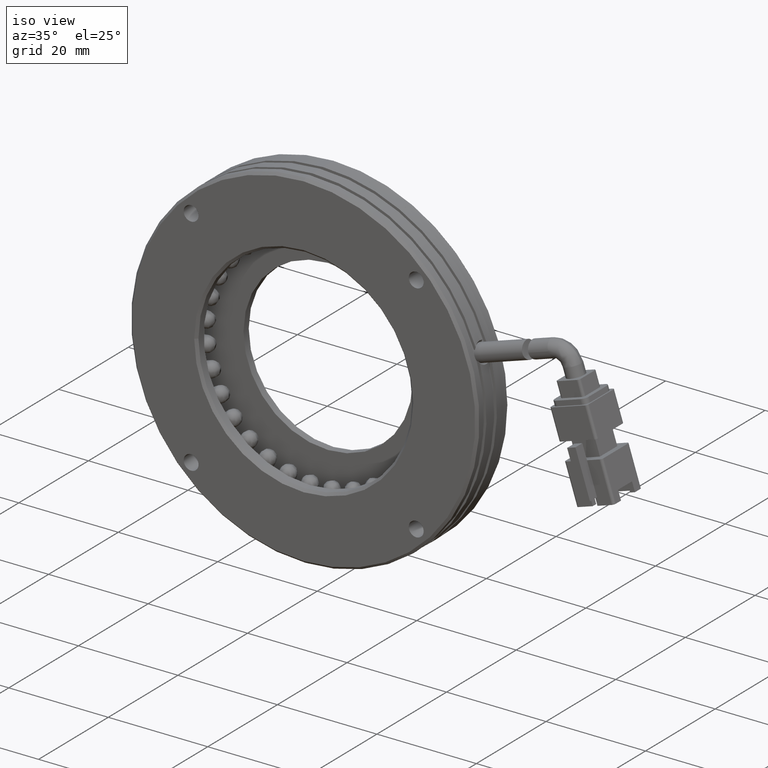
[diagram: clean part render]
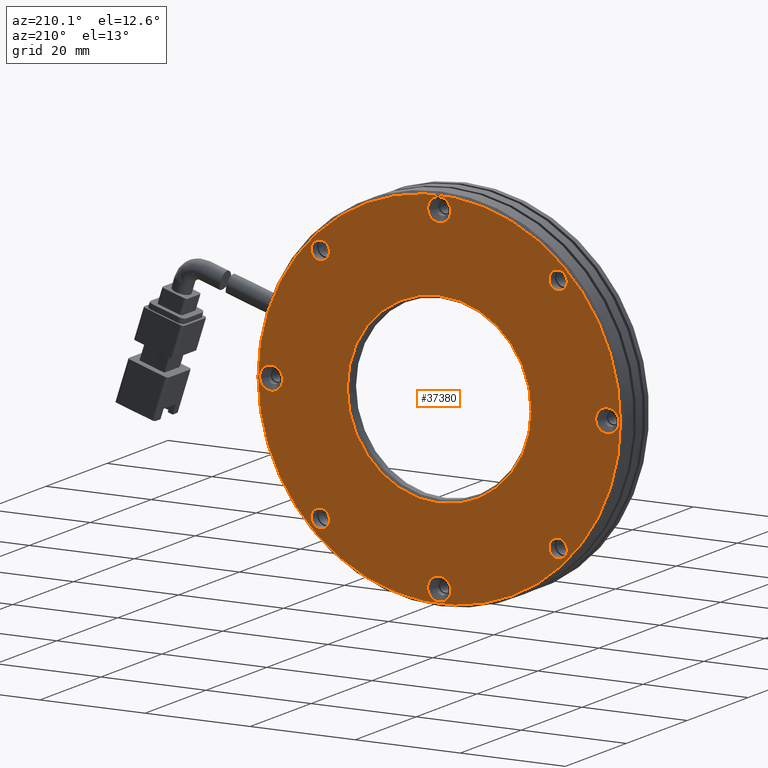
[diagram: tour spotlight — one face highlighted and labeled with its STEP entity id]
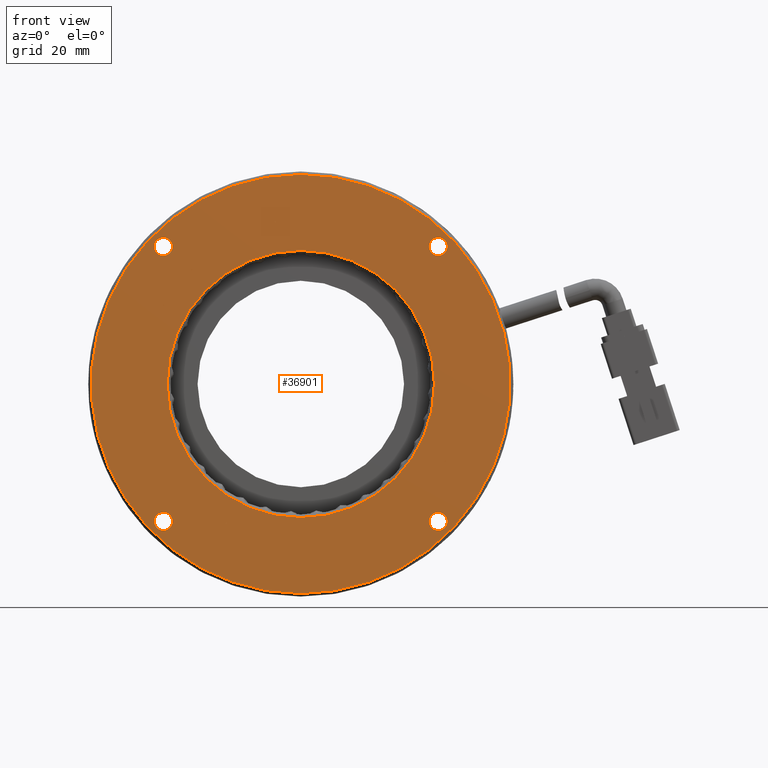
[diagram: tour spotlight — one face highlighted and labeled with its STEP entity id]
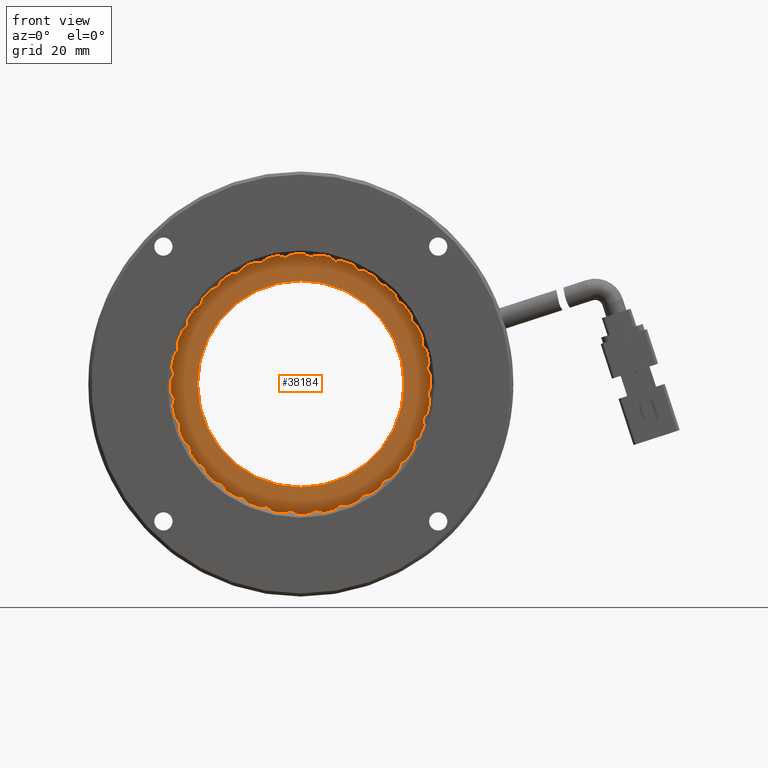
[diagram: tour spotlight — one face highlighted and labeled with its STEP entity id]
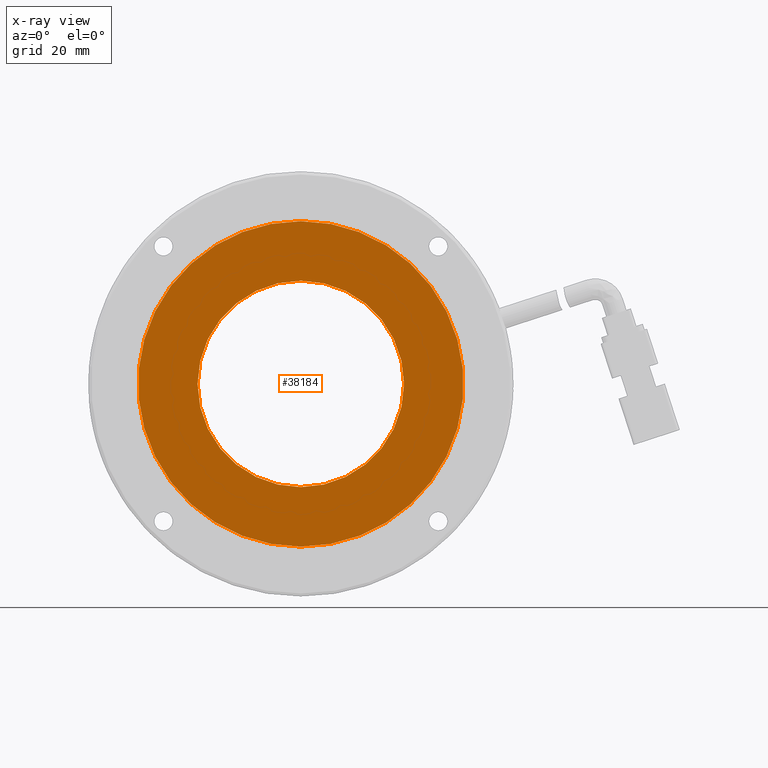
[diagram: x-ray of the same camera — body ghosted, this tour face saturated]
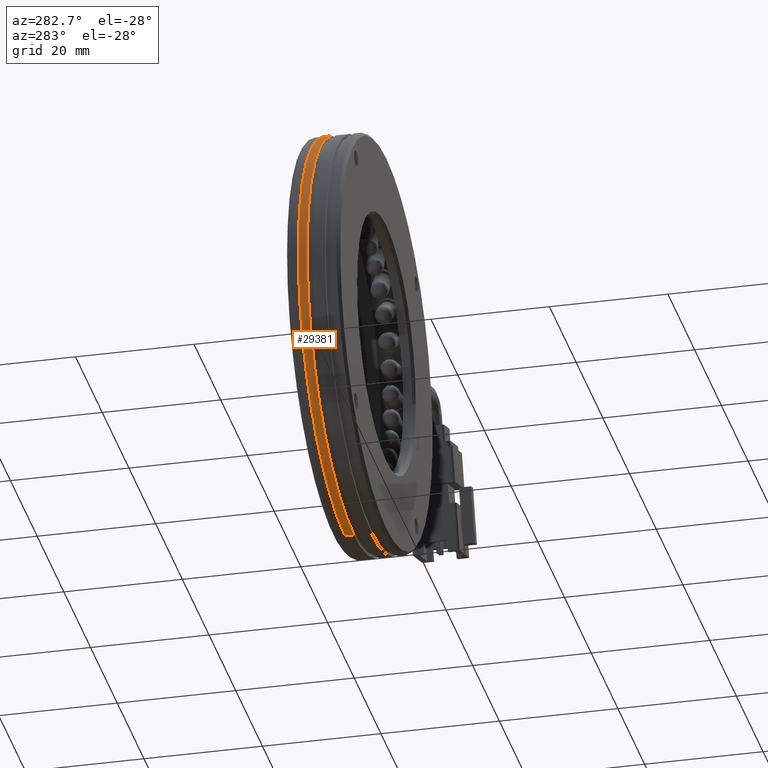
[diagram: tour spotlight — one face highlighted and labeled with its STEP entity id]
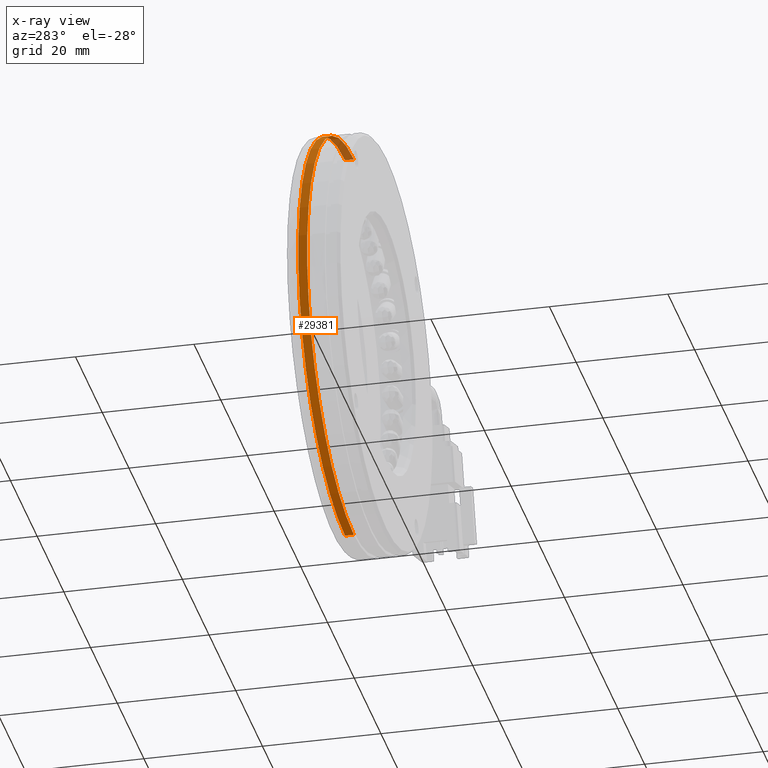
[diagram: x-ray of the same camera — body ghosted, this tour face saturated]
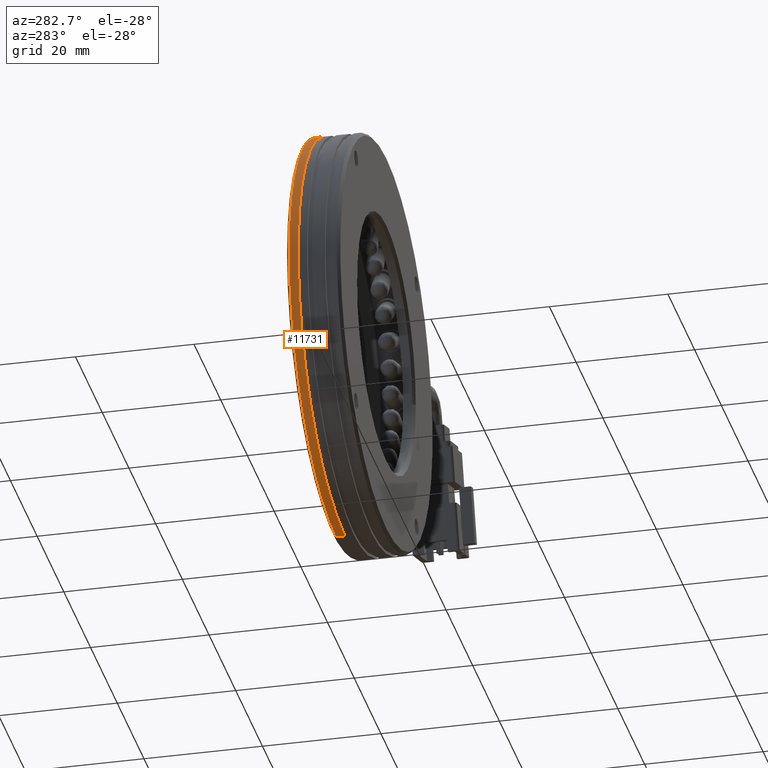
[diagram: tour spotlight — one face highlighted and labeled with its STEP entity id]
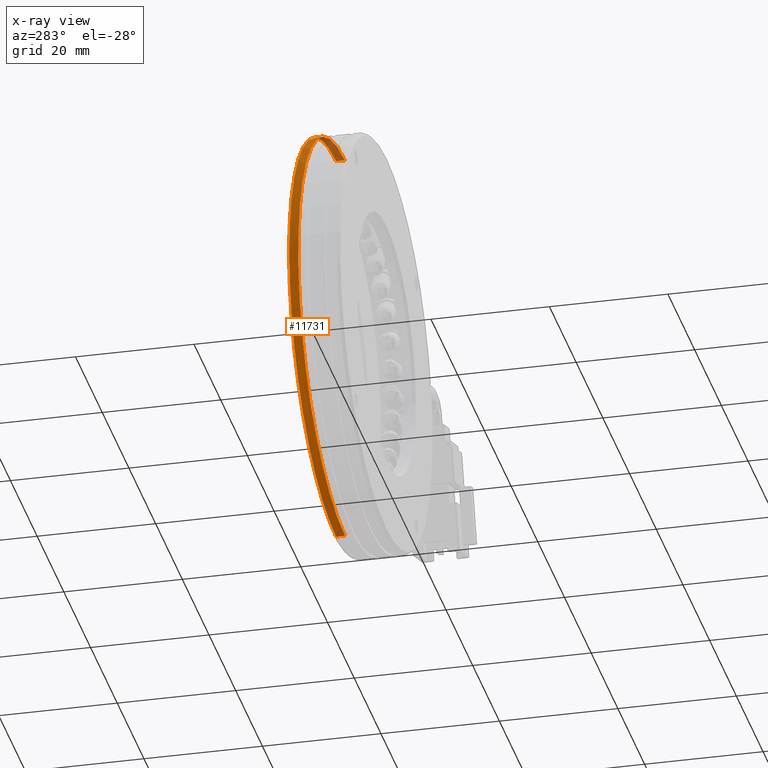
[diagram: x-ray of the same camera — body ghosted, this tour face saturated]
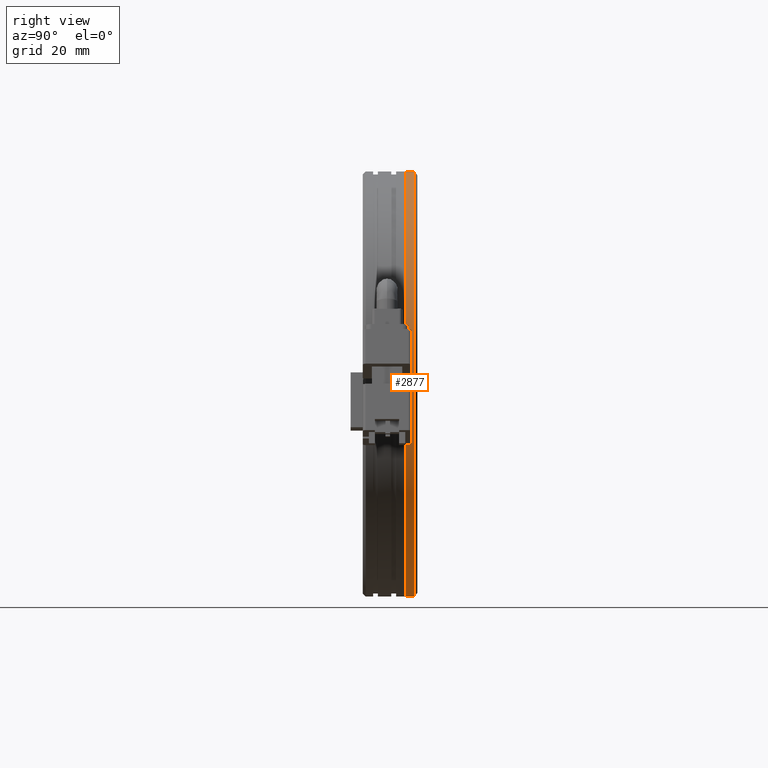
[diagram: tour spotlight — one face highlighted and labeled with its STEP entity id]
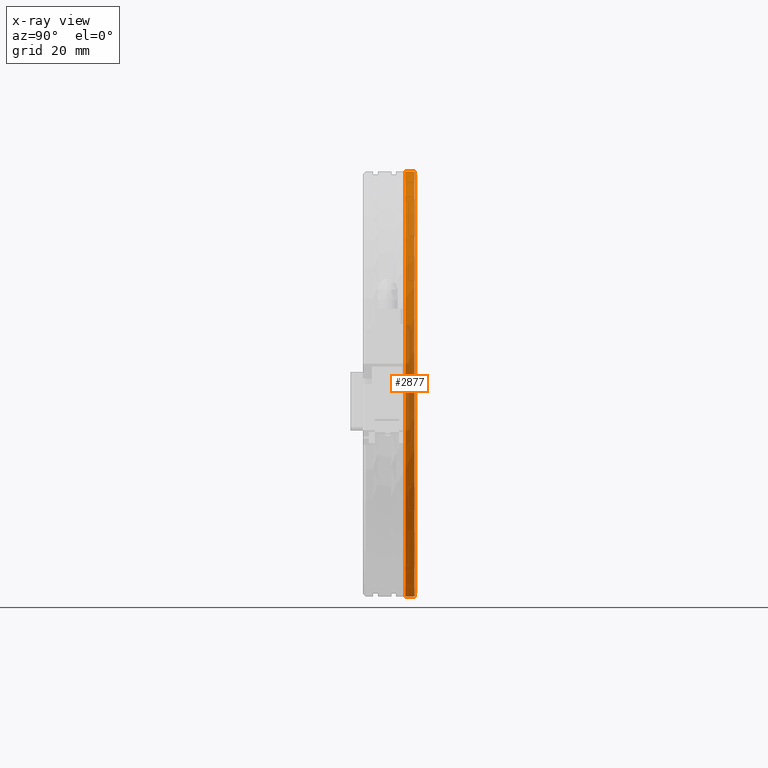
[diagram: x-ray of the same camera — body ghosted, this tour face saturated]
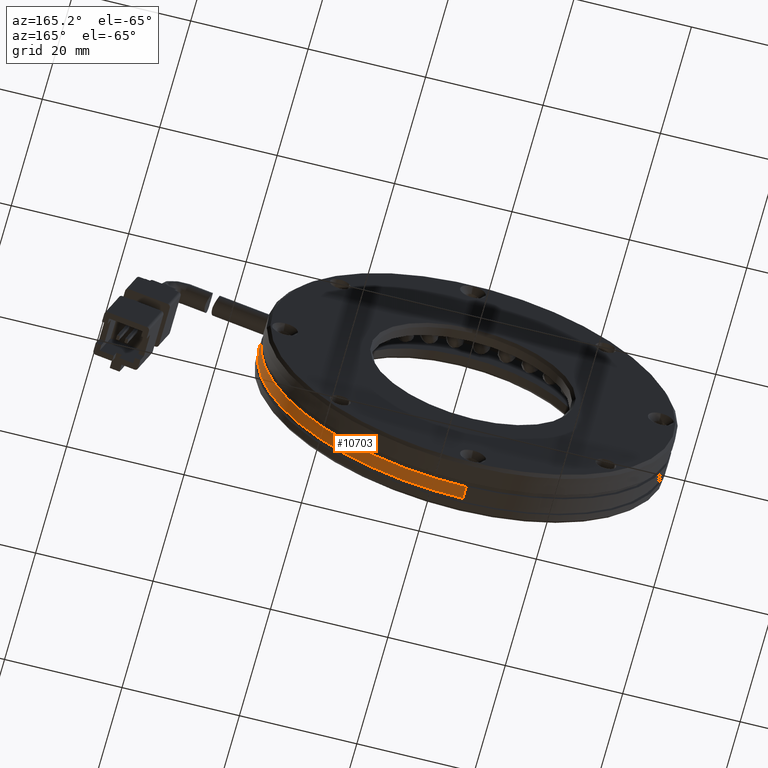
[diagram: tour spotlight — one face highlighted and labeled with its STEP entity id]
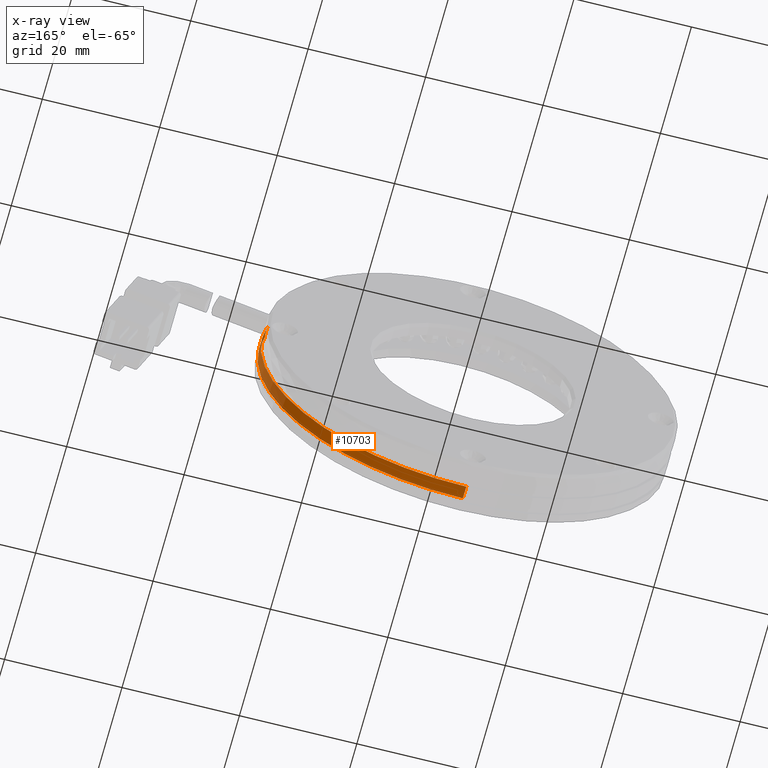
[diagram: x-ray of the same camera — body ghosted, this tour face saturated]
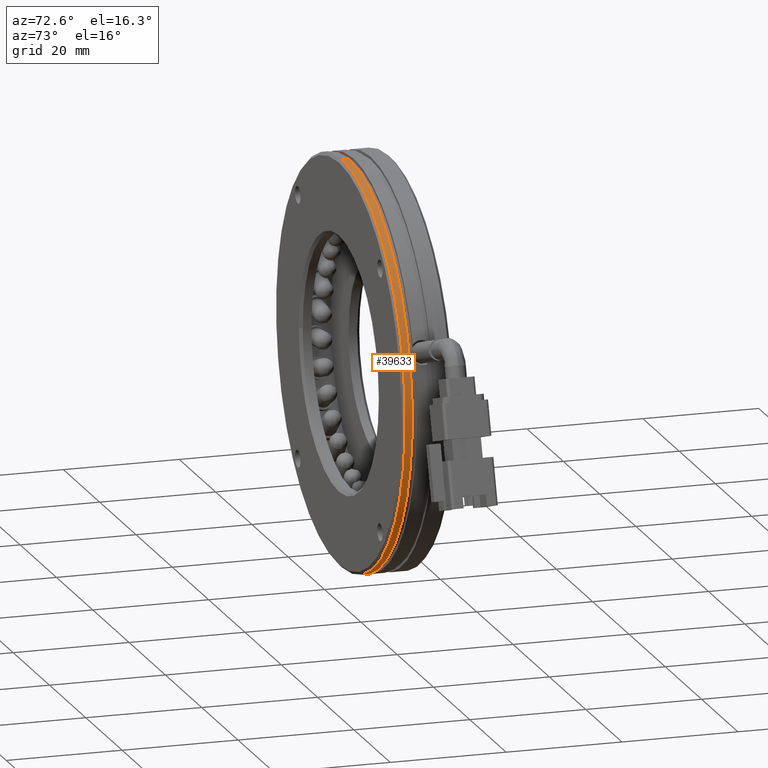
[diagram: tour spotlight — one face highlighted and labeled with its STEP entity id]
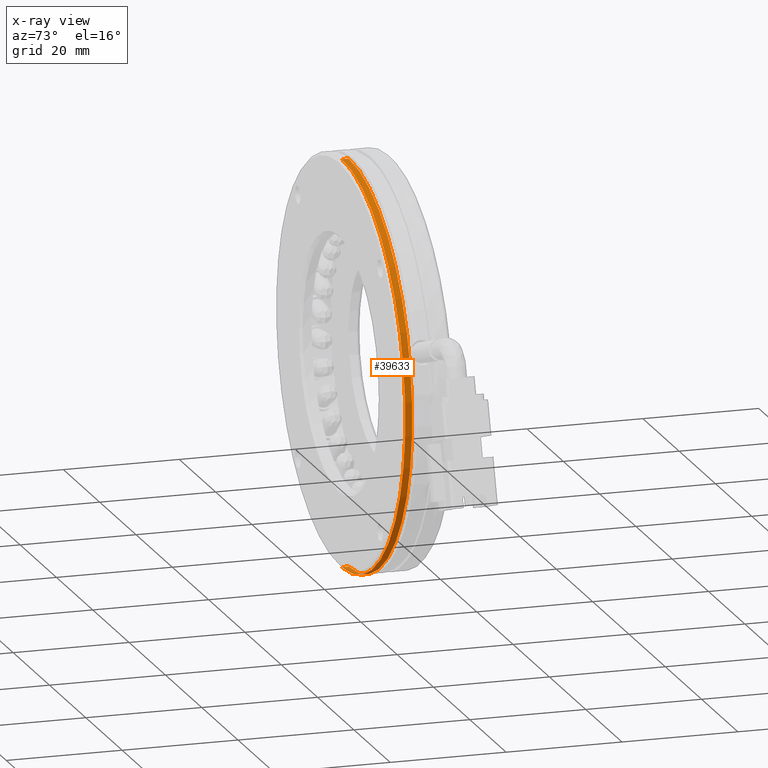
[diagram: x-ray of the same camera — body ghosted, this tour face saturated]
A machine part: a face-by-face anatomy tour. The part has 771 B-rep faces; the first image is the clean iso view, then the 8 largest visible faces are spotlighted one at a time (largest first), each with its STEP entity span.

Face 1 — auxiliary view, entity #37380. In plain terms, the highlighted planar face has unit normal (0, -1, 0).
Definition (entity closure, byte-faithful):
#63 = DIRECTION ( 'NONE',  ( -0.0000000000000000000, 1.000000000000000000, -0.0000000000000000000 ) ) ;
#212 = CARTESIAN_POINT ( 'NONE',  ( 16.91812485306521900, 13.26020291540423700, 24.37741699796944800 ) ) ;
#282 = ORIENTED_EDGE ( 'NONE', *, *, #12980, .F. ) ;
#316 = CARTESIAN_POINT ( 'NONE',  ( 16.91812485306537200, 13.26020291540423700, -20.87741699796935500 ) ) ;
#496 = VERTEX_POINT ( 'NONE', #3821 ) ;
#616 = ORIENTED_EDGE ( 'NONE', *, *, #39645, .F. ) ;
#1071 = CARTESIAN_POINT ( 'NONE',  ( -28.33670914287390000, 13.26020291540423700, 22.62741699796946200 ) ) ;
#1179 = FACE_BOUND ( 'NONE', #39910, .T. ) ;
#1346 = CARTESIAN_POINT ( 'NONE',  ( -5.709292144904342300, 13.26020291540425200, -2.081668171172168500E-014 ) ) ;
#1357 = CIRCLE ( 'NONE', #39826, 2.199999999959344700 ) ;
#2025 = DIRECTION ( 'NONE',  ( 0.0000000000000000000, 0.0000000000000000000, 1.000000000000000000 ) ) ;
#2032 = EDGE_LOOP ( 'NONE', ( #16083, #8957 ) ) ;
#2403 = AXIS2_PLACEMENT_3D ( 'NONE', #29571, #10878, #32719 ) ;
#2554 = CARTESIAN_POINT ( 'NONE',  ( -5.709292144904231300, 13.26020291539931200, -32.00000000000002100 ) ) ;
#2799 = DIRECTION ( 'NONE',  ( 1.000000000000000000, -2.011273595335428600E-016, 0.0000000000000000000 ) ) ;
#3195 = CARTESIAN_POINT ( 'NONE',  ( -37.70929214490434600, 13.26020291534246800, -2.199999999959364700 ) ) ;
#3356 = CARTESIAN_POINT ( 'NONE',  ( 16.91812485306521900, 13.26020291540423700, 22.62741699796945800 ) ) ;
#3754 = VERTEX_POINT ( 'NONE', #5758 ) ;
#3821 = CARTESIAN_POINT ( 'NONE',  ( -5.709292144904342300, 13.26020291540425200, 17.49999999999998900 ) ) ;
#3874 = ORIENTED_EDGE ( 'NONE', *, *, #7253, .F. ) ;
#4095 = ORIENTED_EDGE ( 'NONE', *, *, #11826, .F. ) ;
#4183 = DIRECTION ( 'NONE',  ( -0.0000000000000000000, 1.000000000000000000, -0.0000000000000000000 ) ) ;
#4206 = DIRECTION ( 'NONE',  ( -0.0000000000000000000, 1.000000000000000000, 0.0000000000000000000 ) ) ;
#4212 = DIRECTION ( 'NONE',  ( 0.0000000000000000000, 0.0000000000000000000, 1.000000000000000000 ) ) ;
#4470 = DIRECTION ( 'NONE',  ( 0.0000000000000000000, 0.0000000000000000000, 1.000000000000000000 ) ) ;
#4781 = DIRECTION ( 'NONE',  ( -0.0000000000000000000, 1.000000000000000000, 0.0000000000000000000 ) ) ;
#4788 = DIRECTION ( 'NONE',  ( -0.0000000000000000000, 1.000000000000000000, 0.0000000000000000000 ) ) ;
#5290 = CIRCLE ( 'NONE', #28190, 1.749999999999994700 ) ;
#5423 = CARTESIAN_POINT ( 'NONE',  ( 26.29070785509565800, 13.26020291534246800, 2.016616040823038200E-013 ) ) ;
#5662 = DIRECTION ( 'NONE',  ( 0.0000000000000000000, 0.0000000000000000000, 1.000000000000000000 ) ) ;
#5685 = CIRCLE ( 'NONE', #8439, 1.749999999999991100 ) ;
#5758 = CARTESIAN_POINT ( 'NONE',  ( 26.29070785509565800, 13.26020291534246800, 2.199999999959324700 ) ) ;
#6423 = CIRCLE ( 'NONE', #31159, 1.749999999999991100 ) ;
#6459 = DIRECTION ( 'NONE',  ( 0.0000000000000000000, 0.0000000000000000000, 1.000000000000000000 ) ) ;
#6491 = CARTESIAN_POINT ( 'NONE',  ( 16.91812485306537200, 13.26020291540423700, -24.37741699796933800 ) ) ;
#6531 = CARTESIAN_POINT ( 'NONE',  ( -28.33670914287390000, 13.26020291540423700, 20.87741699796946500 ) ) ;
#6791 = AXIS2_PLACEMENT_3D ( 'NONE', #23326, #4788, #26497 ) ;
#7064 = EDGE_CURVE ( 'NONE', #15309, #30789, #19279, .T. ) ;
#7103 = AXIS2_PLACEMENT_3D ( 'NONE', #13277, #35118, #16408 ) ;
#7253 = EDGE_CURVE ( 'NONE', #33604, #17854, #33087, .T. ) ;
#7650 = VERTEX_POINT ( 'NONE', #6491 ) ;
#7899 = VERTEX_POINT ( 'NONE', #10604 ) ;
#8050 = CARTESIAN_POINT ( 'NONE',  ( -28.33670914287374700, 13.26020291540423700, -22.62741699796966100 ) ) ;
#8070 = EDGE_CURVE ( 'NONE', #7650, #13885, #16779, .T. ) ;
#8439 = AXIS2_PLACEMENT_3D ( 'NONE', #3356, #25041, #6459 ) ;
#8529 = DIRECTION ( 'NONE',  ( 0.0000000000000000000, 0.0000000000000000000, 1.000000000000000000 ) ) ;
#8725 = DIRECTION ( 'NONE',  ( -0.0000000000000000000, 1.000000000000000000, -0.0000000000000000000 ) ) ;
#8830 = CARTESIAN_POINT ( 'NONE',  ( -28.33670914287390000, 13.26020291540423700, 24.37741699796945500 ) ) ;
#8957 = ORIENTED_EDGE ( 'NONE', *, *, #38301, .F. ) ;
#9203 = AXIS2_PLACEMENT_3D ( 'NONE', #40001, #21294, #2799 ) ;
#9391 = FACE_BOUND ( 'NONE', #36527, .T. ) ;
#9615 = CIRCLE ( 'NONE', #35550, 17.50000000000000700 ) ;
#9938 = EDGE_LOOP ( 'NONE', ( #34132, #30235 ) ) ;
#10330 = FACE_BOUND ( 'NONE', #9938, .T. ) ;
#10604 = CARTESIAN_POINT ( 'NONE',  ( -5.709292144904340600, 13.26020291540425200, -17.50000000000002800 ) ) ;
#10717 = EDGE_LOOP ( 'NONE', ( #616, #23667 ) ) ;
#10878 = DIRECTION ( 'NONE',  ( 0.0000000000000000000, -1.000000000000000000, 0.0000000000000000000 ) ) ;
#11102 = DIRECTION ( 'NONE',  ( 0.0000000000000000000, 0.0000000000000000000, 1.000000000000000000 ) ) ;
#11388 = ORIENTED_EDGE ( 'NONE', *, *, #26341, .F. ) ;
#11826 = EDGE_CURVE ( 'NONE', #496, #7899, #26397, .T. ) ;
#11899 = CARTESIAN_POINT ( 'NONE',  ( -5.709292144904231300, 13.26020291539931200, -29.80000000002294100 ) ) ;
#12240 = EDGE_CURVE ( 'NONE', #12685, #18137, #14083, .T. ) ;
#12529 = CARTESIAN_POINT ( 'NONE',  ( -5.709292144904231300, 13.26020291539931200, -34.19999999997710200 ) ) ;
#12685 = VERTEX_POINT ( 'NONE', #212 ) ;
#12742 = AXIS2_PLACEMENT_3D ( 'NONE', #2554, #24218, #5662 ) ;
#12762 = CARTESIAN_POINT ( 'NONE',  ( -5.709292144904676300, 13.26020291539931200, 34.19999999999843300 ) ) ;
#12815 = ORIENTED_EDGE ( 'NONE', *, *, #33792, .F. ) ;
#12980 = EDGE_CURVE ( 'NONE', #34340, #22401, #20266, .T. ) ;
#13146 = CARTESIAN_POINT ( 'NONE',  ( -28.33670914287374700, 13.26020291540423700, -20.87741699796966800 ) ) ;
#13277 = CARTESIAN_POINT ( 'NONE',  ( -28.33670914287390000, 13.26020291540423700, 22.62741699796946200 ) ) ;
#13574 = PLANE ( 'NONE',  #2403 ) ;
#13885 = VERTEX_POINT ( 'NONE', #316 ) ;
#13917 = VERTEX_POINT ( 'NONE', #6531 ) ;
#13950 = CARTESIAN_POINT ( 'NONE',  ( -28.33670914287374700, 13.26020291540423700, -24.37741699796965000 ) ) ;
#14083 = CIRCLE ( 'NONE', #35667, 1.749999999999991100 ) ;
#14175 = DIRECTION ( 'NONE',  ( -0.0000000000000000000, 1.000000000000000000, -0.0000000000000000000 ) ) ;
#14285 = CIRCLE ( 'NONE', #12742, 2.199999999977081600 ) ;
#14963 = EDGE_CURVE ( 'NONE', #34757, #15740, #16103, .T. ) ;
#15008 = DIRECTION ( 'NONE',  ( -0.0000000000000000000, 1.000000000000000000, 0.0000000000000000000 ) ) ;
#15113 = CARTESIAN_POINT ( 'NONE',  ( -5.709292144904342300, 13.26020291540426600, -2.081668171172168500E-014 ) ) ;
#15194 = EDGE_LOOP ( 'NONE', ( #20745, #19828 ) ) ;
#15309 = VERTEX_POINT ( 'NONE', #12529 ) ;
#15740 = VERTEX_POINT ( 'NONE', #30286 ) ;
#15831 = DIRECTION ( 'NONE',  ( -0.0000000000000000000, 1.000000000000000000, 0.0000000000000000000 ) ) ;
#15952 = CIRCLE ( 'NONE', #17953, 2.199999999959123100 ) ;
#16083 = ORIENTED_EDGE ( 'NONE', *, *, #19758, .F. ) ;
#16103 = CIRCLE ( 'NONE', #9203, 34.50000000000000000 ) ;
#16199 = VERTEX_POINT ( 'NONE', #13146 ) ;
#16353 = EDGE_LOOP ( 'NONE', ( #11388, #26227 ) ) ;
#16408 = DIRECTION ( 'NONE',  ( 0.0000000000000000000, 0.0000000000000000000, 1.000000000000000000 ) ) ;
#16583 = EDGE_LOOP ( 'NONE', ( #31697, #282 ) ) ;
#16779 = CIRCLE ( 'NONE', #26488, 1.749999999999991100 ) ;
#16883 = CARTESIAN_POINT ( 'NONE',  ( -37.70929214490434600, 13.26020291534246800, -1.994931997373328200E-014 ) ) ;
#17388 = VERTEX_POINT ( 'NONE', #28498 ) ;
#17588 = FACE_BOUND ( 'NONE', #2032, .T. ) ;
#17854 = VERTEX_POINT ( 'NONE', #30822 ) ;
#17953 = AXIS2_PLACEMENT_3D ( 'NONE', #22718, #4206, #25884 ) ;
#18137 = VERTEX_POINT ( 'NONE', #35359 ) ;
#18236 = DIRECTION ( 'NONE',  ( 1.000000000000000000, -2.011273595335428600E-016, 0.0000000000000000000 ) ) ;
#18553 = CARTESIAN_POINT ( 'NONE',  ( 16.91812485306537200, 13.26020291540423700, -22.62741699796934800 ) ) ;
#18565 = FACE_BOUND ( 'NONE', #15194, .T. ) ;
#19156 = ORIENTED_EDGE ( 'NONE', *, *, #36375, .F. ) ;
#19279 = CIRCLE ( 'NONE', #26276, 2.199999999977081600 ) ;
#19758 = EDGE_CURVE ( 'NONE', #3754, #17388, #22618, .T. ) ;
#19828 = ORIENTED_EDGE ( 'NONE', *, *, #30279, .F. ) ;
#19982 = DIRECTION ( 'NONE',  ( 0.0000000000000000000, 0.0000000000000000000, 1.000000000000000000 ) ) ;
#20266 = CIRCLE ( 'NONE', #6791, 2.199999999998453000 ) ;
#20524 = DIRECTION ( 'NONE',  ( -0.0000000000000000000, 1.000000000000000000, 0.0000000000000000000 ) ) ;
#20745 = ORIENTED_EDGE ( 'NONE', *, *, #12240, .F. ) ;
#21262 = CARTESIAN_POINT ( 'NONE',  ( 28.79070785509566100, 13.26020291540425900, -2.081668171172168500E-014 ) ) ;
#21294 = DIRECTION ( 'NONE',  ( -1.982541115402065400E-016, -1.000000000000000000, 0.0000000000000000000 ) ) ;
#21682 = DIRECTION ( 'NONE',  ( 0.0000000000000000000, 0.0000000000000000000, 1.000000000000000000 ) ) ;
#22401 = VERTEX_POINT ( 'NONE', #12762 ) ;
#22402 = ORIENTED_EDGE ( 'NONE', *, *, #14963, .F. ) ;
#22618 = CIRCLE ( 'NONE', #34098, 2.199999999959123100 ) ;
#22701 = CARTESIAN_POINT ( 'NONE',  ( 16.91812485306521900, 13.26020291540423700, 22.62741699796945800 ) ) ;
#22718 = CARTESIAN_POINT ( 'NONE',  ( 26.29070785509565800, 13.26020291534246800, 2.016616040823038200E-013 ) ) ;
#22727 = DIRECTION ( 'NONE',  ( -0.0000000000000000000, 1.000000000000000000, -0.0000000000000000000 ) ) ;
#23014 = DIRECTION ( 'NONE',  ( -0.0000000000000000000, 1.000000000000000000, 0.0000000000000000000 ) ) ;
#23318 = CARTESIAN_POINT ( 'NONE',  ( -5.709292144904676300, 13.26020291539931200, 31.99999999999997900 ) ) ;
#23326 = CARTESIAN_POINT ( 'NONE',  ( -5.709292144904676300, 13.26020291539931200, 31.99999999999997900 ) ) ;
#23667 = ORIENTED_EDGE ( 'NONE', *, *, #8070, .F. ) ;
#24218 = DIRECTION ( 'NONE',  ( -0.0000000000000000000, 1.000000000000000000, 0.0000000000000000000 ) ) ;
#25041 = DIRECTION ( 'NONE',  ( -0.0000000000000000000, 1.000000000000000000, -0.0000000000000000000 ) ) ;
#25050 = CIRCLE ( 'NONE', #36358, 34.50000000000000000 ) ;
#25310 = EDGE_CURVE ( 'NONE', #30789, #15309, #14285, .T. ) ;
#25859 = DIRECTION ( 'NONE',  ( 0.0000000000000000000, 0.0000000000000000000, 1.000000000000000000 ) ) ;
#25884 = DIRECTION ( 'NONE',  ( 0.0000000000000000000, 0.0000000000000000000, 1.000000000000000000 ) ) ;
#25922 = FACE_BOUND ( 'NONE', #16583, .T. ) ;
#26227 = ORIENTED_EDGE ( 'NONE', *, *, #31285, .F. ) ;
#26276 = AXIS2_PLACEMENT_3D ( 'NONE', #34551, #15831, #37648 ) ;
#26341 = EDGE_CURVE ( 'NONE', #16199, #38891, #6423, .T. ) ;
#26397 = CIRCLE ( 'NONE', #38380, 17.50000000000000700 ) ;
#26484 = DIRECTION ( 'NONE',  ( 0.0000000000000000000, 0.0000000000000000000, 1.000000000000000000 ) ) ;
#26488 = AXIS2_PLACEMENT_3D ( 'NONE', #27356, #8725, #30544 ) ;
#26497 = DIRECTION ( 'NONE',  ( 0.0000000000000000000, 0.0000000000000000000, 1.000000000000000000 ) ) ;
#26910 = FACE_BOUND ( 'NONE', #10717, .T. ) ;
#27139 = DIRECTION ( 'NONE',  ( -0.0000000000000000000, 1.000000000000000000, 0.0000000000000000000 ) ) ;
#27275 = FACE_BOUND ( 'NONE', #36022, .T. ) ;
#27356 = CARTESIAN_POINT ( 'NONE',  ( 16.91812485306537200, 13.26020291540423700, -22.62741699796934800 ) ) ;
#27390 = ORIENTED_EDGE ( 'NONE', *, *, #31499, .F. ) ;
#28190 = AXIS2_PLACEMENT_3D ( 'NONE', #1071, #22727, #4212 ) ;
#28498 = CARTESIAN_POINT ( 'NONE',  ( 26.29070785509565800, 13.26020291534246800, -2.199999999958921500 ) ) ;
#28597 = CARTESIAN_POINT ( 'NONE',  ( -5.709292144904676300, 13.26020291539931200, 29.80000000000152800 ) ) ;
#29458 = ORIENTED_EDGE ( 'NONE', *, *, #25310, .F. ) ;
#29502 = CIRCLE ( 'NONE', #39213, 1.749999999999991100 ) ;
#29571 = CARTESIAN_POINT ( 'NONE',  ( -22.70929214490434600, 13.26020291540425200, -2.081668171172168500E-014 ) ) ;
#29707 = EDGE_LOOP ( 'NONE', ( #22402, #27390 ) ) ;
#29771 = EDGE_CURVE ( 'NONE', #30782, #13917, #5290, .T. ) ;
#29815 = DIRECTION ( 'NONE',  ( -0.0000000000000000000, 1.000000000000000000, -0.0000000000000000000 ) ) ;
#30235 = ORIENTED_EDGE ( 'NONE', *, *, #37810, .F. ) ;
#30279 = EDGE_CURVE ( 'NONE', #18137, #12685, #5685, .T. ) ;
#30286 = CARTESIAN_POINT ( 'NONE',  ( -40.20929214490434600, 13.26020291540427100, -1.656103408468463200E-014 ) ) ;
#30544 = DIRECTION ( 'NONE',  ( 0.0000000000000000000, 0.0000000000000000000, 1.000000000000000000 ) ) ;
#30782 = VERTEX_POINT ( 'NONE', #8830 ) ;
#30789 = VERTEX_POINT ( 'NONE', #11899 ) ;
#30822 = CARTESIAN_POINT ( 'NONE',  ( -37.70929214490434600, 13.26020291534246800, 2.199999999959324700 ) ) ;
#30898 = CIRCLE ( 'NONE', #38716, 1.749999999999991100 ) ;
#31157 = CIRCLE ( 'NONE', #7103, 1.749999999999994700 ) ;
#31159 = AXIS2_PLACEMENT_3D ( 'NONE', #8050, #29815, #11102 ) ;
#31285 = EDGE_CURVE ( 'NONE', #38891, #16199, #29502, .T. ) ;
#31499 = EDGE_CURVE ( 'NONE', #15740, #34757, #25050, .T. ) ;
#31697 = ORIENTED_EDGE ( 'NONE', *, *, #35242, .F. ) ;
#31834 = AXIS2_PLACEMENT_3D ( 'NONE', #16883, #38722, #19982 ) ;
#32719 = DIRECTION ( 'NONE',  ( 0.0000000000000000000, -0.0000000000000000000, -1.000000000000000000 ) ) ;
#32919 = CARTESIAN_POINT ( 'NONE',  ( -28.33670914287374700, 13.26020291540423700, -22.62741699796966100 ) ) ;
#33087 = CIRCLE ( 'NONE', #31834, 2.199999999959344700 ) ;
#33269 = FACE_OUTER_BOUND ( 'NONE', #29707, .T. ) ;
#33569 = AXIS2_PLACEMENT_3D ( 'NONE', #23318, #4781, #26484 ) ;
#33604 = VERTEX_POINT ( 'NONE', #3195 ) ;
#33760 = CARTESIAN_POINT ( 'NONE',  ( -37.70929214490434600, 13.26020291534246800, -1.994931997373328200E-014 ) ) ;
#33792 = EDGE_CURVE ( 'NONE', #7899, #496, #9615, .T. ) ;
#34098 = AXIS2_PLACEMENT_3D ( 'NONE', #5423, #27139, #8529 ) ;
#34132 = ORIENTED_EDGE ( 'NONE', *, *, #29771, .F. ) ;
#34252 = FACE_BOUND ( 'NONE', #16353, .T. ) ;
#34340 = VERTEX_POINT ( 'NONE', #28597 ) ;
#34551 = CARTESIAN_POINT ( 'NONE',  ( -5.709292144904231300, 13.26020291539931200, -32.00000000000002100 ) ) ;
#34757 = VERTEX_POINT ( 'NONE', #21262 ) ;
#35118 = DIRECTION ( 'NONE',  ( -0.0000000000000000000, 1.000000000000000000, -0.0000000000000000000 ) ) ;
#35242 = EDGE_CURVE ( 'NONE', #22401, #34340, #38903, .T. ) ;
#35359 = CARTESIAN_POINT ( 'NONE',  ( 16.91812485306521900, 13.26020291540423700, 20.87741699796946500 ) ) ;
#35550 = AXIS2_PLACEMENT_3D ( 'NONE', #1346, #23014, #4470 ) ;
#35667 = AXIS2_PLACEMENT_3D ( 'NONE', #22701, #4183, #25859 ) ;
#36002 = DIRECTION ( 'NONE',  ( 0.0000000000000000000, 0.0000000000000000000, 1.000000000000000000 ) ) ;
#36022 = EDGE_LOOP ( 'NONE', ( #4095, #12815 ) ) ;
#36358 = AXIS2_PLACEMENT_3D ( 'NONE', #15113, #36941, #18236 ) ;
#36375 = EDGE_CURVE ( 'NONE', #17854, #33604, #1357, .T. ) ;
#36527 = EDGE_LOOP ( 'NONE', ( #29458, #38054 ) ) ;
#36848 = DIRECTION ( 'NONE',  ( 0.0000000000000000000, 0.0000000000000000000, 1.000000000000000000 ) ) ;
#36941 = DIRECTION ( 'NONE',  ( -1.982541115402065400E-016, -1.000000000000000000, 0.0000000000000000000 ) ) ;
#37380 = ADVANCED_FACE ( 'NONE', ( #26910, #34252, #10330, #18565, #25922, #17588, #9391, #1179, #33269, #27275 ), #13574, .F. ) ;
#37648 = DIRECTION ( 'NONE',  ( 0.0000000000000000000, 0.0000000000000000000, 1.000000000000000000 ) ) ;
#37810 = EDGE_CURVE ( 'NONE', #13917, #30782, #31157, .T. ) ;
#38054 = ORIENTED_EDGE ( 'NONE', *, *, #7064, .F. ) ;
#38301 = EDGE_CURVE ( 'NONE', #17388, #3754, #15952, .T. ) ;
#38380 = AXIS2_PLACEMENT_3D ( 'NONE', #39240, #20524, #2025 ) ;
#38716 = AXIS2_PLACEMENT_3D ( 'NONE', #18553, #63, #21682 ) ;
#38722 = DIRECTION ( 'NONE',  ( -0.0000000000000000000, 1.000000000000000000, 0.0000000000000000000 ) ) ;
#38891 = VERTEX_POINT ( 'NONE', #13950 ) ;
#38903 = CIRCLE ( 'NONE', #33569, 2.199999999998453000 ) ;
#39213 = AXIS2_PLACEMENT_3D ( 'NONE', #32919, #14175, #36002 ) ;
#39240 = CARTESIAN_POINT ( 'NONE',  ( -5.709292144904342300, 13.26020291540425200, -2.081668171172168500E-014 ) ) ;
#39645 = EDGE_CURVE ( 'NONE', #13885, #7650, #30898, .T. ) ;
#39826 = AXIS2_PLACEMENT_3D ( 'NONE', #33760, #15008, #36848 ) ;
#39910 = EDGE_LOOP ( 'NONE', ( #19156, #3874 ) ) ;
#40001 = CARTESIAN_POINT ( 'NONE',  ( -5.709292144904342300, 13.26020291540426600, -2.081668171172168500E-014 ) ) ;

Face 2 — front view, entity #36901. In plain terms, the highlighted planar face has unit normal (0, 1, 0).
Definition (entity closure, byte-faithful):
#533 = AXIS2_PLACEMENT_3D ( 'NONE', #4592, #26282, #7696 ) ;
#1484 = ORIENTED_EDGE ( 'NONE', *, *, #6154, .F. ) ;
#1549 = CIRCLE ( 'NONE', #34377, 34.50000000000004300 ) ;
#1557 = CARTESIAN_POINT ( 'NONE',  ( -28.33670914287380800, 4.260202915404256900, -21.12741699796981000 ) ) ;
#1990 = EDGE_CURVE ( 'NONE', #33796, #29151, #4004, .T. ) ;
#2223 = CARTESIAN_POINT ( 'NONE',  ( -5.709292144904560800, 4.260202915404256900, -34.50000000000004300 ) ) ;
#2435 = DIRECTION ( 'NONE',  ( 0.0000000000000000000, 1.000000000000000000, 0.0000000000000000000 ) ) ;
#2780 = CARTESIAN_POINT ( 'NONE',  ( -28.33670914287428400, 4.260202915404256900, 22.62741699796932300 ) ) ;
#3221 = CARTESIAN_POINT ( 'NONE',  ( 16.91812485306530800, 4.260202915404256900, -21.12741699796917400 ) ) ;
#3758 = ORIENTED_EDGE ( 'NONE', *, *, #21400, .F. ) ;
#4004 = CIRCLE ( 'NONE', #34387, 1.499999999999990900 ) ;
#4592 = CARTESIAN_POINT ( 'NONE',  ( 16.91812485306530800, 4.260202915404256900, -22.62741699796916700 ) ) ;
#5147 = FACE_BOUND ( 'NONE', #38353, .T. ) ;
#5211 = ORIENTED_EDGE ( 'NONE', *, *, #36246, .F. ) ;
#5287 = DIRECTION ( 'NONE',  ( -0.0000000000000000000, 1.000000000000000000, 0.0000000000000000000 ) ) ;
#5726 = CIRCLE ( 'NONE', #34438, 21.99999999999999600 ) ;
#5875 = DIRECTION ( 'NONE',  ( 0.0000000000000000000, 0.0000000000000000000, 1.000000000000000000 ) ) ;
#5984 = CARTESIAN_POINT ( 'NONE',  ( -5.709292144904565300, 4.260202915404256900, 34.50000000000004300 ) ) ;
#6154 = EDGE_CURVE ( 'NONE', #36297, #24899, #1549, .T. ) ;
#6766 = CIRCLE ( 'NONE', #37267, 34.50000000000004300 ) ;
#7035 = ORIENTED_EDGE ( 'NONE', *, *, #12596, .F. ) ;
#7169 = CARTESIAN_POINT ( 'NONE',  ( -5.709292144904565300, 4.260202915404256900, 0.0000000000000000000 ) ) ;
#7308 = CIRCLE ( 'NONE', #36209, 21.99999999999999600 ) ;
#7381 = EDGE_CURVE ( 'NONE', #24899, #36297, #6766, .T. ) ;
#7696 = DIRECTION ( 'NONE',  ( 0.0000000000000000000, 0.0000000000000000000, 1.000000000000000000 ) ) ;
#7720 = DIRECTION ( 'NONE',  ( 0.0000000000000000000, -1.000000000000000000, 0.0000000000000000000 ) ) ;
#8019 = ORIENTED_EDGE ( 'NONE', *, *, #12682, .F. ) ;
#8322 = AXIS2_PLACEMENT_3D ( 'NONE', #12576, #34436, #15721 ) ;
#8527 = PLANE ( 'NONE',  #8856 ) ;
#8640 = CARTESIAN_POINT ( 'NONE',  ( -28.33670914287380800, 4.260202915404256900, -24.12741699796979200 ) ) ;
#8856 = AXIS2_PLACEMENT_3D ( 'NONE', #20940, #2435, #24115 ) ;
#8934 = CARTESIAN_POINT ( 'NONE',  ( -28.33670914287428400, 4.260202915404256900, 24.12741699796931600 ) ) ;
#9247 = CARTESIAN_POINT ( 'NONE',  ( -5.709292144904565300, 4.260202915404256900, 0.0000000000000000000 ) ) ;
#10039 = ORIENTED_EDGE ( 'NONE', *, *, #7381, .F. ) ;
#10234 = DIRECTION ( 'NONE',  ( 1.000000000000000000, -1.577021341797097600E-016, 0.0000000000000000000 ) ) ;
#10509 = CARTESIAN_POINT ( 'NONE',  ( -28.33670914287380800, 4.260202915404256900, -22.62741699796980300 ) ) ;
#10568 = DIRECTION ( 'NONE',  ( 0.0000000000000000000, -1.000000000000000000, 0.0000000000000000000 ) ) ;
#10583 = VERTEX_POINT ( 'NONE', #8640 ) ;
#10675 = CIRCLE ( 'NONE', #32838, 1.499999999999994400 ) ;
#11900 = ORIENTED_EDGE ( 'NONE', *, *, #35783, .F. ) ;
#12174 = AXIS2_PLACEMENT_3D ( 'NONE', #26308, #7720, #29475 ) ;
#12326 = DIRECTION ( 'NONE',  ( 1.000000000000000000, -1.577021341797097600E-016, 0.0000000000000000000 ) ) ;
#12404 = EDGE_CURVE ( 'NONE', #17137, #13580, #10675, .T. ) ;
#12576 = CARTESIAN_POINT ( 'NONE',  ( 16.91812485306483900, 4.260202915404256900, 22.62741699796964000 ) ) ;
#12596 = EDGE_CURVE ( 'NONE', #28480, #19135, #7308, .T. ) ;
#12647 = DIRECTION ( 'NONE',  ( 0.0000000000000000000, -1.000000000000000000, 0.0000000000000000000 ) ) ;
#12682 = EDGE_CURVE ( 'NONE', #29151, #33796, #35505, .T. ) ;
#13292 = FACE_BOUND ( 'NONE', #25939, .T. ) ;
#13547 = EDGE_CURVE ( 'NONE', #19135, #28480, #5726, .T. ) ;
#13580 = VERTEX_POINT ( 'NONE', #25755 ) ;
#13611 = DIRECTION ( 'NONE',  ( 0.0000000000000000000, 0.0000000000000000000, 1.000000000000000000 ) ) ;
#13642 = VERTEX_POINT ( 'NONE', #29591 ) ;
#15333 = DIRECTION ( 'NONE',  ( -0.0000000000000000000, 1.000000000000000000, 0.0000000000000000000 ) ) ;
#15721 = DIRECTION ( 'NONE',  ( 0.0000000000000000000, 0.0000000000000000000, 1.000000000000000000 ) ) ;
#16555 = EDGE_CURVE ( 'NONE', #13580, #17137, #23696, .T. ) ;
#17137 = VERTEX_POINT ( 'NONE', #8934 ) ;
#17343 = CARTESIAN_POINT ( 'NONE',  ( 16.91812485306530800, 4.260202915404256900, -22.62741699796916700 ) ) ;
#18519 = CIRCLE ( 'NONE', #12174, 1.499999999999990900 ) ;
#18594 = ORIENTED_EDGE ( 'NONE', *, *, #13547, .F. ) ;
#19135 = VERTEX_POINT ( 'NONE', #40184 ) ;
#20066 = EDGE_LOOP ( 'NONE', ( #10039, #1484 ) ) ;
#20449 = DIRECTION ( 'NONE',  ( 0.0000000000000000000, 0.0000000000000000000, 1.000000000000000000 ) ) ;
#20578 = FACE_OUTER_BOUND ( 'NONE', #20066, .T. ) ;
#20940 = CARTESIAN_POINT ( 'NONE',  ( -40.70929214490455900, 4.260202915404256900, 0.0000000000000000000 ) ) ;
#21400 = EDGE_CURVE ( 'NONE', #10583, #34527, #27746, .T. ) ;
#21572 = FACE_BOUND ( 'NONE', #22548, .T. ) ;
#22548 = EDGE_LOOP ( 'NONE', ( #32218, #8019 ) ) ;
#23196 = CIRCLE ( 'NONE', #32317, 1.499999999999990900 ) ;
#23696 = CIRCLE ( 'NONE', #39348, 1.499999999999994400 ) ;
#23839 = CARTESIAN_POINT ( 'NONE',  ( -5.709292144904565300, 4.260202915404256900, 0.0000000000000000000 ) ) ;
#24115 = DIRECTION ( 'NONE',  ( 0.0000000000000000000, -0.0000000000000000000, 1.000000000000000000 ) ) ;
#24446 = DIRECTION ( 'NONE',  ( 0.0000000000000000000, -1.000000000000000000, 0.0000000000000000000 ) ) ;
#24899 = VERTEX_POINT ( 'NONE', #5984 ) ;
#25311 = ORIENTED_EDGE ( 'NONE', *, *, #28027, .F. ) ;
#25313 = EDGE_LOOP ( 'NONE', ( #7035, #18594 ) ) ;
#25755 = CARTESIAN_POINT ( 'NONE',  ( -28.33670914287428400, 4.260202915404256900, 21.12741699796932700 ) ) ;
#25939 = EDGE_LOOP ( 'NONE', ( #26374, #38669 ) ) ;
#26282 = DIRECTION ( 'NONE',  ( 0.0000000000000000000, -1.000000000000000000, 0.0000000000000000000 ) ) ;
#26308 = CARTESIAN_POINT ( 'NONE',  ( -28.33670914287380800, 4.260202915404256900, -22.62741699796980300 ) ) ;
#26374 = ORIENTED_EDGE ( 'NONE', *, *, #12404, .F. ) ;
#27004 = DIRECTION ( 'NONE',  ( 0.0000000000000000000, 0.0000000000000000000, 1.000000000000000000 ) ) ;
#27746 = CIRCLE ( 'NONE', #33191, 1.499999999999990900 ) ;
#28027 = EDGE_CURVE ( 'NONE', #34527, #10583, #18519, .T. ) ;
#28257 = CARTESIAN_POINT ( 'NONE',  ( 16.91812485306483900, 4.260202915404256900, 21.12741699796964700 ) ) ;
#28480 = VERTEX_POINT ( 'NONE', #37187 ) ;
#28622 = DIRECTION ( 'NONE',  ( 0.0000000000000000000, 0.0000000000000000000, 1.000000000000000000 ) ) ;
#28908 = DIRECTION ( 'NONE',  ( -1.577021341797097600E-016, -1.000000000000000000, 0.0000000000000000000 ) ) ;
#28953 = FACE_BOUND ( 'NONE', #25313, .T. ) ;
#29151 = VERTEX_POINT ( 'NONE', #28257 ) ;
#29308 = CARTESIAN_POINT ( 'NONE',  ( 16.91812485306483900, 4.260202915404256900, 22.62741699796964000 ) ) ;
#29475 = DIRECTION ( 'NONE',  ( 0.0000000000000000000, 0.0000000000000000000, 1.000000000000000000 ) ) ;
#29591 = CARTESIAN_POINT ( 'NONE',  ( 16.91812485306530800, 4.260202915404256900, -24.12741699796915600 ) ) ;
#29652 = CIRCLE ( 'NONE', #533, 1.499999999999990900 ) ;
#29690 = CARTESIAN_POINT ( 'NONE',  ( -28.33670914287428400, 4.260202915404256900, 22.62741699796932300 ) ) ;
#29944 = FACE_BOUND ( 'NONE', #30409, .T. ) ;
#30409 = EDGE_LOOP ( 'NONE', ( #25311, #3758 ) ) ;
#31068 = DIRECTION ( 'NONE',  ( -1.577021341797097600E-016, -1.000000000000000000, 0.0000000000000000000 ) ) ;
#32218 = ORIENTED_EDGE ( 'NONE', *, *, #1990, .F. ) ;
#32317 = AXIS2_PLACEMENT_3D ( 'NONE', #17343, #39166, #20449 ) ;
#32343 = CARTESIAN_POINT ( 'NONE',  ( 16.91812485306483900, 4.260202915404256900, 24.12741699796962900 ) ) ;
#32358 = DIRECTION ( 'NONE',  ( 0.0000000000000000000, -1.000000000000000000, 0.0000000000000000000 ) ) ;
#32418 = DIRECTION ( 'NONE',  ( 0.0000000000000000000, 0.0000000000000000000, 1.000000000000000000 ) ) ;
#32838 = AXIS2_PLACEMENT_3D ( 'NONE', #29690, #10568, #32418 ) ;
#33191 = AXIS2_PLACEMENT_3D ( 'NONE', #10509, #32358, #13611 ) ;
#33195 = VERTEX_POINT ( 'NONE', #3221 ) ;
#33796 = VERTEX_POINT ( 'NONE', #32343 ) ;
#34058 = CARTESIAN_POINT ( 'NONE',  ( -5.709292144904565300, 4.260202915404256900, 0.0000000000000000000 ) ) ;
#34377 = AXIS2_PLACEMENT_3D ( 'NONE', #34058, #15333, #37164 ) ;
#34387 = AXIS2_PLACEMENT_3D ( 'NONE', #29308, #12647, #28622 ) ;
#34436 = DIRECTION ( 'NONE',  ( 0.0000000000000000000, -1.000000000000000000, 0.0000000000000000000 ) ) ;
#34438 = AXIS2_PLACEMENT_3D ( 'NONE', #7169, #28908, #10234 ) ;
#34527 = VERTEX_POINT ( 'NONE', #1557 ) ;
#35505 = CIRCLE ( 'NONE', #8322, 1.499999999999990900 ) ;
#35783 = EDGE_CURVE ( 'NONE', #13642, #33195, #29652, .T. ) ;
#36209 = AXIS2_PLACEMENT_3D ( 'NONE', #9247, #31068, #12326 ) ;
#36246 = EDGE_CURVE ( 'NONE', #33195, #13642, #23196, .T. ) ;
#36297 = VERTEX_POINT ( 'NONE', #2223 ) ;
#36901 = ADVANCED_FACE ( 'NONE', ( #21572, #13292, #29944, #5147, #28953, #20578 ), #8527, .F. ) ;
#37164 = DIRECTION ( 'NONE',  ( 0.0000000000000000000, 0.0000000000000000000, 1.000000000000000000 ) ) ;
#37187 = CARTESIAN_POINT ( 'NONE',  ( 16.29070785509543000, 4.260202915404253300, 0.0000000000000000000 ) ) ;
#37267 = AXIS2_PLACEMENT_3D ( 'NONE', #23839, #5287, #27004 ) ;
#38353 = EDGE_LOOP ( 'NONE', ( #5211, #11900 ) ) ;
#38669 = ORIENTED_EDGE ( 'NONE', *, *, #16555, .F. ) ;
#39166 = DIRECTION ( 'NONE',  ( 0.0000000000000000000, -1.000000000000000000, 0.0000000000000000000 ) ) ;
#39348 = AXIS2_PLACEMENT_3D ( 'NONE', #2780, #24446, #5875 ) ;
#40184 = CARTESIAN_POINT ( 'NONE',  ( -27.70929214490455900, 4.260202915404260400, 2.694222958124176400E-015 ) ) ;

Face 3 — front view, entity #38184. An x-ray twin of the same camera follows (body ghosted, this face saturated) — the face is partly hidden behind the body. In plain terms, the highlighted planar face has unit normal (0, 1, 0).
Definition (entity closure, byte-faithful):
#475 = CARTESIAN_POINT ( 'NONE',  ( -5.709292144904338800, 11.26020291540426400, 26.79999999999997900 ) ) ;
#920 = EDGE_CURVE ( 'NONE', #9580, #8635, #15183, .T. ) ;
#1740 = DIRECTION ( 'NONE',  ( 0.0000000000000000000, 1.000000000000000000, 0.0000000000000000000 ) ) ;
#5550 = AXIS2_PLACEMENT_3D ( 'NONE', #25479, #6894, #28632 ) ;
#6609 = ORIENTED_EDGE ( 'NONE', *, *, #920, .F. ) ;
#6894 = DIRECTION ( 'NONE',  ( 0.0000000000000000000, 1.000000000000000000, 0.0000000000000000000 ) ) ;
#8224 = CIRCLE ( 'NONE', #13003, 17.00000000000000000 ) ;
#8530 = VERTEX_POINT ( 'NONE', #27741 ) ;
#8635 = VERTEX_POINT ( 'NONE', #475 ) ;
#9152 = AXIS2_PLACEMENT_3D ( 'NONE', #32157, #13409, #35258 ) ;
#9580 = VERTEX_POINT ( 'NONE', #16397 ) ;
#10352 = CIRCLE ( 'NONE', #12859, 26.80000000000000100 ) ;
#11057 = EDGE_LOOP ( 'NONE', ( #6609, #12697 ) ) ;
#11282 = AXIS2_PLACEMENT_3D ( 'NONE', #29190, #29405, #29383 ) ;
#12697 = ORIENTED_EDGE ( 'NONE', *, *, #39721, .F. ) ;
#12859 = AXIS2_PLACEMENT_3D ( 'NONE', #34562, #15838, #37658 ) ;
#12919 = PLANE ( 'NONE',  #5550 ) ;
#13003 = AXIS2_PLACEMENT_3D ( 'NONE', #20210, #1740, #23400 ) ;
#13409 = DIRECTION ( 'NONE',  ( 0.0000000000000000000, 1.000000000000000000, 0.0000000000000000000 ) ) ;
#15183 = CIRCLE ( 'NONE', #11282, 26.80000000000000100 ) ;
#15475 = FACE_OUTER_BOUND ( 'NONE', #11057, .T. ) ;
#15838 = DIRECTION ( 'NONE',  ( 0.0000000000000000000, 1.000000000000000000, 0.0000000000000000000 ) ) ;
#16397 = CARTESIAN_POINT ( 'NONE',  ( -5.709292144904342300, 11.26020291540426400, -26.80000000000002200 ) ) ;
#20210 = CARTESIAN_POINT ( 'NONE',  ( -5.709292144904342300, 11.26020291540426400, -2.081668171172168500E-014 ) ) ;
#22785 = CIRCLE ( 'NONE', #9152, 17.00000000000000000 ) ;
#23400 = DIRECTION ( 'NONE',  ( 0.0000000000000000000, 0.0000000000000000000, -1.000000000000000000 ) ) ;
#23765 = FACE_BOUND ( 'NONE', #32100, .T. ) ;
#24805 = ORIENTED_EDGE ( 'NONE', *, *, #38453, .T. ) ;
#25479 = CARTESIAN_POINT ( 'NONE',  ( -29.70929214490434600, 11.26020291540426400, -2.081668171172168500E-014 ) ) ;
#27741 = CARTESIAN_POINT ( 'NONE',  ( -5.709292144904340600, 11.26020291540426400, 16.99999999999997900 ) ) ;
#28632 = DIRECTION ( 'NONE',  ( 0.0000000000000000000, -0.0000000000000000000, 1.000000000000000000 ) ) ;
#29190 = CARTESIAN_POINT ( 'NONE',  ( -5.709292144904342300, 11.26020291540426400, -2.081668171172168500E-014 ) ) ;
#29383 = DIRECTION ( 'NONE',  ( 0.0000000000000000000, 0.0000000000000000000, -1.000000000000000000 ) ) ;
#29405 = DIRECTION ( 'NONE',  ( 0.0000000000000000000, 1.000000000000000000, 0.0000000000000000000 ) ) ;
#30437 = VERTEX_POINT ( 'NONE', #38099 ) ;
#32100 = EDGE_LOOP ( 'NONE', ( #24805, #36393 ) ) ;
#32157 = CARTESIAN_POINT ( 'NONE',  ( -5.709292144904342300, 11.26020291540426400, -2.081668171172168500E-014 ) ) ;
#34562 = CARTESIAN_POINT ( 'NONE',  ( -5.709292144904342300, 11.26020291540426400, -2.081668171172168500E-014 ) ) ;
#35258 = DIRECTION ( 'NONE',  ( 0.0000000000000000000, 0.0000000000000000000, -1.000000000000000000 ) ) ;
#36393 = ORIENTED_EDGE ( 'NONE', *, *, #37854, .T. ) ;
#37658 = DIRECTION ( 'NONE',  ( 0.0000000000000000000, 0.0000000000000000000, -1.000000000000000000 ) ) ;
#37854 = EDGE_CURVE ( 'NONE', #8530, #30437, #22785, .T. ) ;
#38099 = CARTESIAN_POINT ( 'NONE',  ( -5.709292144904342300, 11.26020291540426400, -17.00000000000002100 ) ) ;
#38184 = ADVANCED_FACE ( 'NONE', ( #15475, #23765 ), #12919, .F. ) ;
#38453 = EDGE_CURVE ( 'NONE', #30437, #8530, #8224, .T. ) ;
#39721 = EDGE_CURVE ( 'NONE', #8635, #9580, #10352, .T. ) ;

Face 4 — auxiliary view, entity #29381. An x-ray twin of the same camera follows (body ghosted, this face saturated) — the face is partly hidden behind the body. In plain terms, the highlighted cylindrical surface (partial cylindrical patch) has radius 35 mm, axis along (-0, -1, -0).
Definition (entity closure, byte-faithful):
#2227 = DIRECTION ( 'NONE',  ( 0.0000000000000000000, 0.0000000000000000000, -1.000000000000000000 ) ) ;
#3284 = AXIS2_PLACEMENT_3D ( 'NONE', #39431, #20713, #2227 ) ;
#6437 = VECTOR ( 'NONE', #9524, 1000.000000000000000 ) ;
#6690 = AXIS2_PLACEMENT_3D ( 'NONE', #29274, #10575, #32432 ) ;
#7776 = CYLINDRICAL_SURFACE ( 'NONE', #19224, 34.99999999999999300 ) ;
#9454 = CARTESIAN_POINT ( 'NONE',  ( -5.709292144904565300, 11.26020291540426400, -34.99999999999999300 ) ) ;
#9524 = DIRECTION ( 'NONE',  ( -0.0000000000000000000, -1.000000000000000000, -0.0000000000000000000 ) ) ;
#9833 = CIRCLE ( 'NONE', #6690, 34.99999999999999300 ) ;
#10019 = VERTEX_POINT ( 'NONE', #18272 ) ;
#10575 = DIRECTION ( 'NONE',  ( 0.0000000000000000000, 1.000000000000000000, 0.0000000000000000000 ) ) ;
#10727 = VECTOR ( 'NONE', #18956, 1000.000000000000000 ) ;
#15043 = EDGE_CURVE ( 'NONE', #10019, #22823, #22901, .T. ) ;
#15088 = EDGE_CURVE ( 'NONE', #17276, #34638, #34643, .T. ) ;
#17276 = VERTEX_POINT ( 'NONE', #9454 ) ;
#17624 = CARTESIAN_POINT ( 'NONE',  ( -5.709292144904560800, 9.760203051484200600, 34.99999999999999300 ) ) ;
#18272 = CARTESIAN_POINT ( 'NONE',  ( -5.709292144904560800, 11.26020291540426400, 34.99999999999999300 ) ) ;
#18497 = ORIENTED_EDGE ( 'NONE', *, *, #26469, .T. ) ;
#18861 = FACE_OUTER_BOUND ( 'NONE', #39076, .T. ) ;
#18956 = DIRECTION ( 'NONE',  ( -0.0000000000000000000, -1.000000000000000000, -0.0000000000000000000 ) ) ;
#19224 = AXIS2_PLACEMENT_3D ( 'NONE', #36292, #23854, #39540 ) ;
#20713 = DIRECTION ( 'NONE',  ( -0.0000000000000000000, -1.000000000000000000, -0.0000000000000000000 ) ) ;
#22823 = VERTEX_POINT ( 'NONE', #17624 ) ;
#22901 = LINE ( 'NONE', #28161, #6437 ) ;
#23854 = DIRECTION ( 'NONE',  ( -0.0000000000000000000, -1.000000000000000000, -0.0000000000000000000 ) ) ;
#25329 = CIRCLE ( 'NONE', #3284, 34.99999999999999300 ) ;
#26469 = EDGE_CURVE ( 'NONE', #10019, #17276, #25329, .T. ) ;
#28161 = CARTESIAN_POINT ( 'NONE',  ( -5.709292144904560800, -49.82318178258231000, 34.99999999999999300 ) ) ;
#28342 = ORIENTED_EDGE ( 'NONE', *, *, #34486, .T. ) ;
#28914 = ORIENTED_EDGE ( 'NONE', *, *, #15088, .T. ) ;
#29274 = CARTESIAN_POINT ( 'NONE',  ( -5.709292144904565300, 9.760203051484200600, 0.0000000000000000000 ) ) ;
#29381 = ADVANCED_FACE ( 'NONE', ( #18861 ), #7776, .T. ) ;
#32432 = DIRECTION ( 'NONE',  ( 0.0000000000000000000, 0.0000000000000000000, -1.000000000000000000 ) ) ;
#34486 = EDGE_CURVE ( 'NONE', #34638, #22823, #9833, .T. ) ;
#34638 = VERTEX_POINT ( 'NONE', #39179 ) ;
#34643 = LINE ( 'NONE', #37679, #10727 ) ;
#35650 = ORIENTED_EDGE ( 'NONE', *, *, #15043, .F. ) ;
#36292 = CARTESIAN_POINT ( 'NONE',  ( -5.709292144904565300, -49.82318178258231000, 0.0000000000000000000 ) ) ;
#37679 = CARTESIAN_POINT ( 'NONE',  ( -5.709292144904565300, -49.82318178258231000, -34.99999999999999300 ) ) ;
#39076 = EDGE_LOOP ( 'NONE', ( #35650, #18497, #28914, #28342 ) ) ;
#39179 = CARTESIAN_POINT ( 'NONE',  ( -5.709292144904565300, 9.760203051484200600, -34.99999999999999300 ) ) ;
#39431 = CARTESIAN_POINT ( 'NONE',  ( -5.709292144904565300, 11.26020291540426400, 0.0000000000000000000 ) ) ;
#39540 = DIRECTION ( 'NONE',  ( 0.0000000000000000000, 0.0000000000000000000, -1.000000000000000000 ) ) ;

Face 5 — auxiliary view, entity #11731. An x-ray twin of the same camera follows (body ghosted, this face saturated) — the face is partly hidden behind the body. In plain terms, the highlighted cylindrical surface (partial cylindrical patch) has radius 35 mm, axis along (-0, -1, -0).
Definition (entity closure, byte-faithful):
#1184 = CYLINDRICAL_SURFACE ( 'NONE', #17471, 35.00000000000000000 ) ;
#2710 = EDGE_CURVE ( 'NONE', #37148, #28916, #39325, .T. ) ;
#3147 = VERTEX_POINT ( 'NONE', #25417 ) ;
#4024 = AXIS2_PLACEMENT_3D ( 'NONE', #6215, #27947, #9305 ) ;
#5054 = VERTEX_POINT ( 'NONE', #19229 ) ;
#5457 = ORIENTED_EDGE ( 'NONE', *, *, #39409, .F. ) ;
#6215 = CARTESIAN_POINT ( 'NONE',  ( -5.709292144904342300, 11.26020291540426400, -2.081668171172168500E-014 ) ) ;
#7459 = DIRECTION ( 'NONE',  ( -0.0000000000000000000, -1.000000000000000000, -0.0000000000000000000 ) ) ;
#9305 = DIRECTION ( 'NONE',  ( 0.0000000000000000000, 0.0000000000000000000, -1.000000000000000000 ) ) ;
#9705 = CARTESIAN_POINT ( 'NONE',  ( -40.70929214490435300, 12.76020291540426400, -1.653041791470594900E-014 ) ) ;
#10331 = DIRECTION ( 'NONE',  ( 0.0000000000000000000, 1.000000000000000000, 0.0000000000000000000 ) ) ;
#10817 = CARTESIAN_POINT ( 'NONE',  ( -5.709292144904342300, 12.76020291540426400, -2.081668171172168500E-014 ) ) ;
#11210 = AXIS2_PLACEMENT_3D ( 'NONE', #29006, #10331, #32167 ) ;
#11333 = CIRCLE ( 'NONE', #11210, 35.00000000000000000 ) ;
#11731 = ADVANCED_FACE ( 'NONE', ( #20510 ), #1184, .T. ) ;
#12197 = ORIENTED_EDGE ( 'NONE', *, *, #25682, .F. ) ;
#13506 = DIRECTION ( 'NONE',  ( -0.0000000000000000000, -1.000000000000000000, -0.0000000000000000000 ) ) ;
#13750 = CIRCLE ( 'NONE', #15723, 35.00000000000000000 ) ;
#13913 = DIRECTION ( 'NONE',  ( 0.0000000000000000000, 0.0000000000000000000, -1.000000000000000000 ) ) ;
#14494 = EDGE_CURVE ( 'NONE', #28916, #5054, #21066, .T. ) ;
#14667 = CARTESIAN_POINT ( 'NONE',  ( -5.709292144904342300, 11.26020291540426400, -35.00000000000002100 ) ) ;
#15723 = AXIS2_PLACEMENT_3D ( 'NONE', #10817, #32653, #13913 ) ;
#17471 = AXIS2_PLACEMENT_3D ( 'NONE', #35440, #7459, #29340 ) ;
#19174 = ORIENTED_EDGE ( 'NONE', *, *, #14494, .T. ) ;
#19229 = CARTESIAN_POINT ( 'NONE',  ( -5.709292144904337900, 11.26020291540426400, 34.99999999999998600 ) ) ;
#20030 = VERTEX_POINT ( 'NONE', #9705 ) ;
#20510 = FACE_OUTER_BOUND ( 'NONE', #35377, .T. ) ;
#21066 = CIRCLE ( 'NONE', #4024, 35.00000000000000000 ) ;
#24548 = ORIENTED_EDGE ( 'NONE', *, *, #2710, .T. ) ;
#25417 = CARTESIAN_POINT ( 'NONE',  ( -5.709292144904337900, 12.76020291540426400, 34.99999999999998600 ) ) ;
#25512 = LINE ( 'NONE', #35349, #32864 ) ;
#25682 = EDGE_CURVE ( 'NONE', #20030, #3147, #11333, .T. ) ;
#27947 = DIRECTION ( 'NONE',  ( 0.0000000000000000000, 1.000000000000000000, 0.0000000000000000000 ) ) ;
#28194 = DIRECTION ( 'NONE',  ( -0.0000000000000000000, -1.000000000000000000, -0.0000000000000000000 ) ) ;
#28916 = VERTEX_POINT ( 'NONE', #14667 ) ;
#29006 = CARTESIAN_POINT ( 'NONE',  ( -5.709292144904342300, 12.76020291540426400, -2.081668171172168500E-014 ) ) ;
#29340 = DIRECTION ( 'NONE',  ( 0.0000000000000000000, 0.0000000000000000000, -1.000000000000000000 ) ) ;
#31119 = VECTOR ( 'NONE', #28194, 1000.000000000000000 ) ;
#31433 = ORIENTED_EDGE ( 'NONE', *, *, #39582, .F. ) ;
#31524 = CARTESIAN_POINT ( 'NONE',  ( -5.709292144904342300, -67.75338872902170800, -35.00000000000002100 ) ) ;
#32167 = DIRECTION ( 'NONE',  ( 0.0000000000000000000, 0.0000000000000000000, -1.000000000000000000 ) ) ;
#32653 = DIRECTION ( 'NONE',  ( 0.0000000000000000000, 1.000000000000000000, 0.0000000000000000000 ) ) ;
#32864 = VECTOR ( 'NONE', #13506, 1000.000000000000000 ) ;
#34495 = CARTESIAN_POINT ( 'NONE',  ( -5.709292144904342300, 12.76020291540426400, -35.00000000000002100 ) ) ;
#35349 = CARTESIAN_POINT ( 'NONE',  ( -5.709292144904337900, -67.75338872902170800, 34.99999999999998600 ) ) ;
#35377 = EDGE_LOOP ( 'NONE', ( #5457, #12197, #31433, #24548, #19174 ) ) ;
#35440 = CARTESIAN_POINT ( 'NONE',  ( -5.709292144904342300, -67.75338872902170800, -2.081668171172168500E-014 ) ) ;
#37148 = VERTEX_POINT ( 'NONE', #34495 ) ;
#39325 = LINE ( 'NONE', #31524, #31119 ) ;
#39409 = EDGE_CURVE ( 'NONE', #3147, #5054, #25512, .T. ) ;
#39582 = EDGE_CURVE ( 'NONE', #37148, #20030, #13750, .T. ) ;

Face 6 — right view, entity #2877. An x-ray twin of the same camera follows (body ghosted, this face saturated) — the face is partly hidden behind the body. In plain terms, the highlighted cylindrical surface (partial cylindrical patch) has radius 35 mm, axis along (-0, -1, -0).
Definition (entity closure, byte-faithful):
#752 = EDGE_CURVE ( 'NONE', #3147, #1764, #33063, .T. ) ;
#1516 = EDGE_CURVE ( 'NONE', #1764, #37148, #12639, .T. ) ;
#1764 = VERTEX_POINT ( 'NONE', #4609 ) ;
#2710 = EDGE_CURVE ( 'NONE', #37148, #28916, #39325, .T. ) ;
#2877 = ADVANCED_FACE ( 'NONE', ( #31089 ), #35389, .T. ) ;
#3147 = VERTEX_POINT ( 'NONE', #25417 ) ;
#3579 = ORIENTED_EDGE ( 'NONE', *, *, #2710, .F. ) ;
#4366 = ORIENTED_EDGE ( 'NONE', *, *, #1516, .F. ) ;
#4609 = CARTESIAN_POINT ( 'NONE',  ( 29.29070785509565400, 12.76020291540426400, -2.081668171172168500E-014 ) ) ;
#5054 = VERTEX_POINT ( 'NONE', #19229 ) ;
#5524 = DIRECTION ( 'NONE',  ( 0.0000000000000000000, 1.000000000000000000, 0.0000000000000000000 ) ) ;
#7962 = AXIS2_PLACEMENT_3D ( 'NONE', #35169, #35042, #35094 ) ;
#8016 = EDGE_LOOP ( 'NONE', ( #30775, #27807, #32356, #3579, #4366 ) ) ;
#12639 = CIRCLE ( 'NONE', #27774, 35.00000000000000000 ) ;
#12977 = DIRECTION ( 'NONE',  ( 0.0000000000000000000, 1.000000000000000000, 0.0000000000000000000 ) ) ;
#13002 = DIRECTION ( 'NONE',  ( 0.0000000000000000000, 0.0000000000000000000, -1.000000000000000000 ) ) ;
#13055 = CARTESIAN_POINT ( 'NONE',  ( -5.709292144904342300, 12.76020291540426400, -2.081668171172168500E-014 ) ) ;
#13475 = AXIS2_PLACEMENT_3D ( 'NONE', #16472, #18744, #15360 ) ;
#13506 = DIRECTION ( 'NONE',  ( -0.0000000000000000000, -1.000000000000000000, -0.0000000000000000000 ) ) ;
#14667 = CARTESIAN_POINT ( 'NONE',  ( -5.709292144904342300, 11.26020291540426400, -35.00000000000002100 ) ) ;
#15360 = DIRECTION ( 'NONE',  ( 0.0000000000000000000, 0.0000000000000000000, -1.000000000000000000 ) ) ;
#16472 = CARTESIAN_POINT ( 'NONE',  ( -5.709292144904342300, -67.75338872902170800, -2.081668171172168500E-014 ) ) ;
#18744 = DIRECTION ( 'NONE',  ( -0.0000000000000000000, -1.000000000000000000, -0.0000000000000000000 ) ) ;
#19229 = CARTESIAN_POINT ( 'NONE',  ( -5.709292144904337900, 11.26020291540426400, 34.99999999999998600 ) ) ;
#21416 = AXIS2_PLACEMENT_3D ( 'NONE', #24087, #5524, #27245 ) ;
#24087 = CARTESIAN_POINT ( 'NONE',  ( -5.709292144904342300, 11.26020291540426400, -2.081668171172168500E-014 ) ) ;
#25417 = CARTESIAN_POINT ( 'NONE',  ( -5.709292144904337900, 12.76020291540426400, 34.99999999999998600 ) ) ;
#25512 = LINE ( 'NONE', #35349, #32864 ) ;
#27245 = DIRECTION ( 'NONE',  ( 0.0000000000000000000, 0.0000000000000000000, -1.000000000000000000 ) ) ;
#27774 = AXIS2_PLACEMENT_3D ( 'NONE', #13055, #12977, #13002 ) ;
#27807 = ORIENTED_EDGE ( 'NONE', *, *, #39409, .T. ) ;
#28194 = DIRECTION ( 'NONE',  ( -0.0000000000000000000, -1.000000000000000000, -0.0000000000000000000 ) ) ;
#28916 = VERTEX_POINT ( 'NONE', #14667 ) ;
#30775 = ORIENTED_EDGE ( 'NONE', *, *, #752, .F. ) ;
#31089 = FACE_OUTER_BOUND ( 'NONE', #8016, .T. ) ;
#31119 = VECTOR ( 'NONE', #28194, 1000.000000000000000 ) ;
#31524 = CARTESIAN_POINT ( 'NONE',  ( -5.709292144904342300, -67.75338872902170800, -35.00000000000002100 ) ) ;
#31545 = CIRCLE ( 'NONE', #21416, 35.00000000000000000 ) ;
#32356 = ORIENTED_EDGE ( 'NONE', *, *, #33968, .T. ) ;
#32864 = VECTOR ( 'NONE', #13506, 1000.000000000000000 ) ;
#33063 = CIRCLE ( 'NONE', #7962, 35.00000000000000000 ) ;
#33968 = EDGE_CURVE ( 'NONE', #5054, #28916, #31545, .T. ) ;
#34495 = CARTESIAN_POINT ( 'NONE',  ( -5.709292144904342300, 12.76020291540426400, -35.00000000000002100 ) ) ;
#35042 = DIRECTION ( 'NONE',  ( 0.0000000000000000000, 1.000000000000000000, 0.0000000000000000000 ) ) ;
#35094 = DIRECTION ( 'NONE',  ( 0.0000000000000000000, 0.0000000000000000000, -1.000000000000000000 ) ) ;
#35169 = CARTESIAN_POINT ( 'NONE',  ( -5.709292144904342300, 12.76020291540426400, -2.081668171172168500E-014 ) ) ;
#35349 = CARTESIAN_POINT ( 'NONE',  ( -5.709292144904337900, -67.75338872902170800, 34.99999999999998600 ) ) ;
#35389 = CYLINDRICAL_SURFACE ( 'NONE', #13475, 35.00000000000000000 ) ;
#37148 = VERTEX_POINT ( 'NONE', #34495 ) ;
#39325 = LINE ( 'NONE', #31524, #31119 ) ;
#39409 = EDGE_CURVE ( 'NONE', #3147, #5054, #25512, .T. ) ;

Face 7 — auxiliary view, entity #10703. An x-ray twin of the same camera follows (body ghosted, this face saturated) — the face is partly hidden behind the body. In plain terms, the highlighted cylindrical surface (partial cylindrical patch) has radius 35 mm, axis along (-0, -1, -0).
Definition (entity closure, byte-faithful):
#749 = ORIENTED_EDGE ( 'NONE', *, *, #16878, .T. ) ;
#2576 = DIRECTION ( 'NONE',  ( 0.0000000000000000000, 0.0000000000000000000, -1.000000000000000000 ) ) ;
#3109 = CARTESIAN_POINT ( 'NONE',  ( 28.08758229151173000, 7.193551915158317400, 9.098228825833983200 ) ) ;
#4521 = DIRECTION ( 'NONE',  ( 0.0000000000000000000, 1.000000000000000000, 0.0000000000000000000 ) ) ;
#5107 = CARTESIAN_POINT ( 'NONE',  ( 28.16266982439745800, 8.498701271424213400, 8.814204011149115600 ) ) ;
#5396 = B_SPLINE_CURVE_WITH_KNOTS ( 'NONE', 3,
 ( #21471, #27789, #37180, #18468, #40306, #21607, #3109, #24762, #6198, #27930 ),
 .UNSPECIFIED., .F., .F.,
 ( 4, 2, 2, 2, 4 ),
 ( 1.287490079826536500E-017, 0.0004177943125497449600, 0.0008355886250994744200, 0.001253382937649203700, 0.001671177250198933200 ),
 .UNSPECIFIED. ) ;
#5683 = ORIENTED_EDGE ( 'NONE', *, *, #7498, .T. ) ;
#6198 = CARTESIAN_POINT ( 'NONE',  ( 28.02068185850903200, 6.856938855332591000, 9.343417376378109700 ) ) ;
#7398 = VERTEX_POINT ( 'NONE', #11321 ) ;
#7498 = EDGE_CURVE ( 'NONE', #15447, #29072, #10097, .T. ) ;
#7570 = CARTESIAN_POINT ( 'NONE',  ( 27.99291278373003400, 6.760202915291841900, 9.442530537325119200 ) ) ;
#8416 = AXIS2_PLACEMENT_3D ( 'NONE', #23054, #4521, #26194 ) ;
#10097 = CIRCLE ( 'NONE', #17644, 34.99999999999999300 ) ;
#10700 = ORIENTED_EDGE ( 'NONE', *, *, #13213, .F. ) ;
#10703 = ADVANCED_FACE ( 'NONE', ( #12579 ), #25267, .T. ) ;
#11321 = CARTESIAN_POINT ( 'NONE',  ( 28.16266973426902400, 8.260202915404260400, 8.814204357502207500 ) ) ;
#12432 = EDGE_CURVE ( 'NONE', #29072, #7398, #35565, .T. ) ;
#12579 = FACE_OUTER_BOUND ( 'NONE', #31357, .T. ) ;
#13213 = EDGE_CURVE ( 'NONE', #15447, #21247, #25173, .T. ) ;
#13848 = ORIENTED_EDGE ( 'NONE', *, *, #25452, .T. ) ;
#15447 = VERTEX_POINT ( 'NONE', #22607 ) ;
#15735 = CARTESIAN_POINT ( 'NONE',  ( 28.13140083686064600, 8.960202915595127500, 8.933504268421595300 ) ) ;
#16878 = EDGE_CURVE ( 'NONE', #29794, #21247, #30545, .T. ) ;
#17644 = AXIS2_PLACEMENT_3D ( 'NONE', #39792, #21073, #2576 ) ;
#17702 = CARTESIAN_POINT ( 'NONE',  ( -5.709292144904565300, -49.82318178258231000, -34.99999999999999300 ) ) ;
#18468 = CARTESIAN_POINT ( 'NONE',  ( 28.14468976749926200, 7.707243208876656500, 8.883057587043104800 ) ) ;
#21073 = DIRECTION ( 'NONE',  ( -0.0000000000000000000, -1.000000000000000000, -0.0000000000000000000 ) ) ;
#21247 = VERTEX_POINT ( 'NONE', #28239 ) ;
#21471 = CARTESIAN_POINT ( 'NONE',  ( 28.16266973426902400, 8.260202915404260400, 8.814204357502207500 ) ) ;
#21607 = CARTESIAN_POINT ( 'NONE',  ( 28.10518939052489900, 7.315022147099133700, 9.032383140963133900 ) ) ;
#22607 = CARTESIAN_POINT ( 'NONE',  ( -5.709292144904565300, 8.960202915404266800, -34.99999999999999300 ) ) ;
#23054 = CARTESIAN_POINT ( 'NONE',  ( -5.709292144904565300, 6.760202915404272900, 0.0000000000000000000 ) ) ;
#23646 = CARTESIAN_POINT ( 'NONE',  ( 28.15219211267634900, 8.736047603867033800, 8.854745568533523700 ) ) ;
#24187 = VECTOR ( 'NONE', #30609, 1000.000000000000000 ) ;
#24648 = DIRECTION ( 'NONE',  ( 0.0000000000000000000, 0.0000000000000000000, -1.000000000000000000 ) ) ;
#24762 = CARTESIAN_POINT ( 'NONE',  ( 28.04534292510654900, 6.964310482286642000, 9.253707404521796000 ) ) ;
#25173 = LINE ( 'NONE', #17702, #24187 ) ;
#25267 = CYLINDRICAL_SURFACE ( 'NONE', #38327, 34.99999999999999300 ) ;
#25452 = EDGE_CURVE ( 'NONE', #7398, #29794, #5396, .T. ) ;
#26194 = DIRECTION ( 'NONE',  ( 8.921435019309294500E-016, 0.0000000000000000000, -1.000000000000000000 ) ) ;
#26803 = CARTESIAN_POINT ( 'NONE',  ( 28.16266973426902400, 8.260202915404260400, 8.814204357502207500 ) ) ;
#27789 = CARTESIAN_POINT ( 'NONE',  ( 28.16266968088349300, 8.118933837319492100, 8.814204562656584600 ) ) ;
#27930 = CARTESIAN_POINT ( 'NONE',  ( 27.99291278373003400, 6.760202915291841900, 9.442530537325119200 ) ) ;
#28239 = CARTESIAN_POINT ( 'NONE',  ( -5.709292144904565300, 6.760202915404272900, -34.99999999999999300 ) ) ;
#29052 = ORIENTED_EDGE ( 'NONE', *, *, #12432, .T. ) ;
#29072 = VERTEX_POINT ( 'NONE', #15735 ) ;
#29794 = VERTEX_POINT ( 'NONE', #7570 ) ;
#30545 = CIRCLE ( 'NONE', #8416, 34.99999999999999300 ) ;
#30609 = DIRECTION ( 'NONE',  ( -0.0000000000000000000, -1.000000000000000000, -0.0000000000000000000 ) ) ;
#30859 = CARTESIAN_POINT ( 'NONE',  ( -5.709292144904565300, -49.82318178258231000, 0.0000000000000000000 ) ) ;
#31357 = EDGE_LOOP ( 'NONE', ( #10700, #5683, #29052, #13848, #749 ) ) ;
#35507 = CARTESIAN_POINT ( 'NONE',  ( 28.13140083686064600, 8.960202915595127500, 8.933504268421595300 ) ) ;
#35565 = B_SPLINE_CURVE_WITH_KNOTS ( 'NONE', 3,
 ( #35507, #23646, #5107, #26803 ),
 .UNSPECIFIED., .F., .F.,
 ( 4, 4 ),
 ( -0.0007053437174538772200, 1.290200585257750300E-017 ),
 .UNSPECIFIED. ) ;
#36932 = DIRECTION ( 'NONE',  ( -0.0000000000000000000, -1.000000000000000000, -0.0000000000000000000 ) ) ;
#37180 = CARTESIAN_POINT ( 'NONE',  ( 28.15903319735081600, 7.980128960755473100, 8.828212839030976900 ) ) ;
#38327 = AXIS2_PLACEMENT_3D ( 'NONE', #30859, #36932, #24648 ) ;
#39792 = CARTESIAN_POINT ( 'NONE',  ( -5.709292144904565300, 8.960202915404266800, 0.0000000000000000000 ) ) ;
#40306 = CARTESIAN_POINT ( 'NONE',  ( 28.13378615857853800, 7.571687830071054400, 8.924637676643648400 ) ) ;

Face 8 — auxiliary view, entity #39633. An x-ray twin of the same camera follows (body ghosted, this face saturated) — the face is partly hidden behind the body. In plain terms, the highlighted cylindrical surface (partial cylindrical patch) has radius 35 mm, axis along (-0, -1, -0).
Definition (entity closure, byte-faithful):
#483 = AXIS2_PLACEMENT_3D ( 'NONE', #12169, #6010, #6151 ) ;
#4359 = CARTESIAN_POINT ( 'NONE',  ( -5.709292144904565300, -49.82318178258231000, -34.99999999999999300 ) ) ;
#4424 = EDGE_CURVE ( 'NONE', #28393, #24216, #33248, .T. ) ;
#5298 = ORIENTED_EDGE ( 'NONE', *, *, #4424, .T. ) ;
#6010 = DIRECTION ( 'NONE',  ( -0.0000000000000000000, -1.000000000000000000, -0.0000000000000000000 ) ) ;
#6052 = CYLINDRICAL_SURFACE ( 'NONE', #483, 34.99999999999999300 ) ;
#6151 = DIRECTION ( 'NONE',  ( 0.0000000000000000000, 0.0000000000000000000, -1.000000000000000000 ) ) ;
#6843 = DIRECTION ( 'NONE',  ( 0.0000000000000000000, 0.0000000000000000000, -1.000000000000000000 ) ) ;
#7320 = DIRECTION ( 'NONE',  ( -0.0000000000000000000, -1.000000000000000000, -0.0000000000000000000 ) ) ;
#7645 = DIRECTION ( 'NONE',  ( -0.0000000000000000000, -1.000000000000000000, -0.0000000000000000000 ) ) ;
#7777 = CARTESIAN_POINT ( 'NONE',  ( -5.709292144904565300, 5.960202915404264200, 0.0000000000000000000 ) ) ;
#7823 = ORIENTED_EDGE ( 'NONE', *, *, #31719, .F. ) ;
#9048 = CARTESIAN_POINT ( 'NONE',  ( -5.709292144904565300, 5.960202915404264200, -34.99999999999999300 ) ) ;
#10086 = CARTESIAN_POINT ( 'NONE',  ( -5.709292144904565300, 4.760202915404216000, 0.0000000000000000000 ) ) ;
#11706 = EDGE_CURVE ( 'NONE', #28393, #16388, #29870, .T. ) ;
#11811 = AXIS2_PLACEMENT_3D ( 'NONE', #10086, #31937, #13172 ) ;
#12169 = CARTESIAN_POINT ( 'NONE',  ( -5.709292144904565300, -49.82318178258231000, 0.0000000000000000000 ) ) ;
#13172 = DIRECTION ( 'NONE',  ( 0.0000000000000000000, 0.0000000000000000000, 1.000000000000000000 ) ) ;
#13481 = EDGE_CURVE ( 'NONE', #24216, #14941, #26118, .T. ) ;
#14941 = VERTEX_POINT ( 'NONE', #33655 ) ;
#16388 = VERTEX_POINT ( 'NONE', #26531 ) ;
#16462 = AXIS2_PLACEMENT_3D ( 'NONE', #7777, #7645, #6843 ) ;
#16811 = VECTOR ( 'NONE', #28505, 1000.000000000000000 ) ;
#17662 = CIRCLE ( 'NONE', #11811, 34.99999999999999300 ) ;
#19596 = ORIENTED_EDGE ( 'NONE', *, *, #13481, .T. ) ;
#24216 = VERTEX_POINT ( 'NONE', #34146 ) ;
#25347 = CARTESIAN_POINT ( 'NONE',  ( -5.709292144904560800, -49.82318178258231000, 34.99999999999999300 ) ) ;
#26118 = LINE ( 'NONE', #25347, #16811 ) ;
#26531 = CARTESIAN_POINT ( 'NONE',  ( -5.709292144904565300, 4.760202915404216000, -34.99999999999999300 ) ) ;
#27452 = EDGE_LOOP ( 'NONE', ( #5298, #19596, #7823, #31857 ) ) ;
#28393 = VERTEX_POINT ( 'NONE', #9048 ) ;
#28505 = DIRECTION ( 'NONE',  ( -0.0000000000000000000, -1.000000000000000000, -0.0000000000000000000 ) ) ;
#28880 = VECTOR ( 'NONE', #7320, 1000.000000000000000 ) ;
#29870 = LINE ( 'NONE', #4359, #28880 ) ;
#31719 = EDGE_CURVE ( 'NONE', #16388, #14941, #17662, .T. ) ;
#31857 = ORIENTED_EDGE ( 'NONE', *, *, #11706, .F. ) ;
#31937 = DIRECTION ( 'NONE',  ( -0.0000000000000000000, -1.000000000000000000, -0.0000000000000000000 ) ) ;
#33248 = CIRCLE ( 'NONE', #16462, 34.99999999999999300 ) ;
#33655 = CARTESIAN_POINT ( 'NONE',  ( -5.709292144904560800, 4.760202915404216000, 34.99999999999999300 ) ) ;
#33814 = FACE_OUTER_BOUND ( 'NONE', #27452, .T. ) ;
#34146 = CARTESIAN_POINT ( 'NONE',  ( -5.709292144904560800, 5.960202915404264200, 34.99999999999999300 ) ) ;
#39633 = ADVANCED_FACE ( 'NONE', ( #33814 ), #6052, .T. ) ;